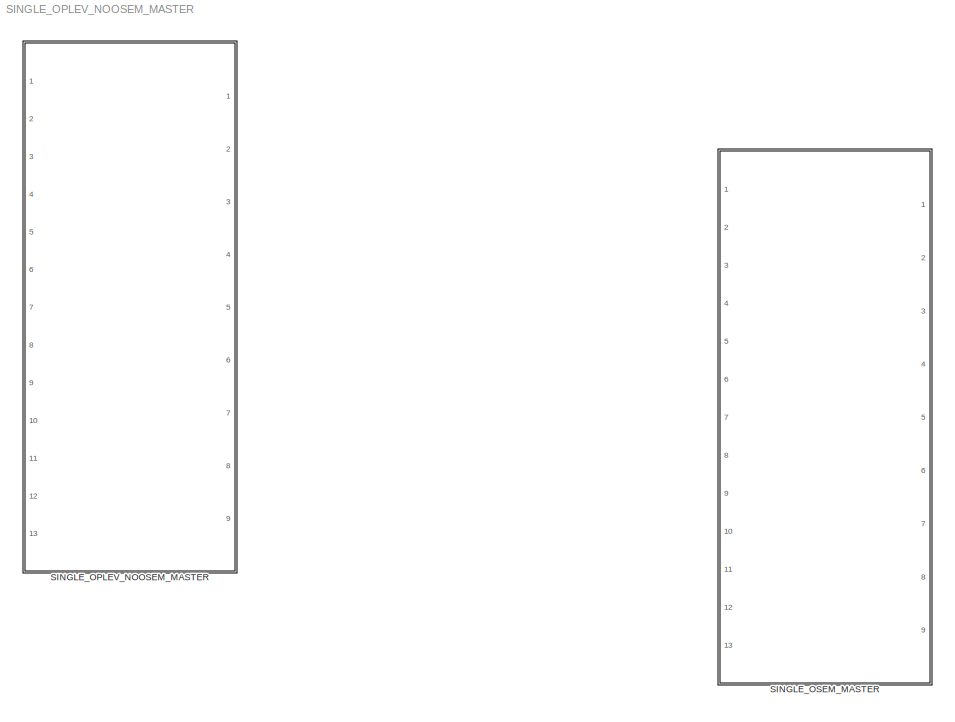
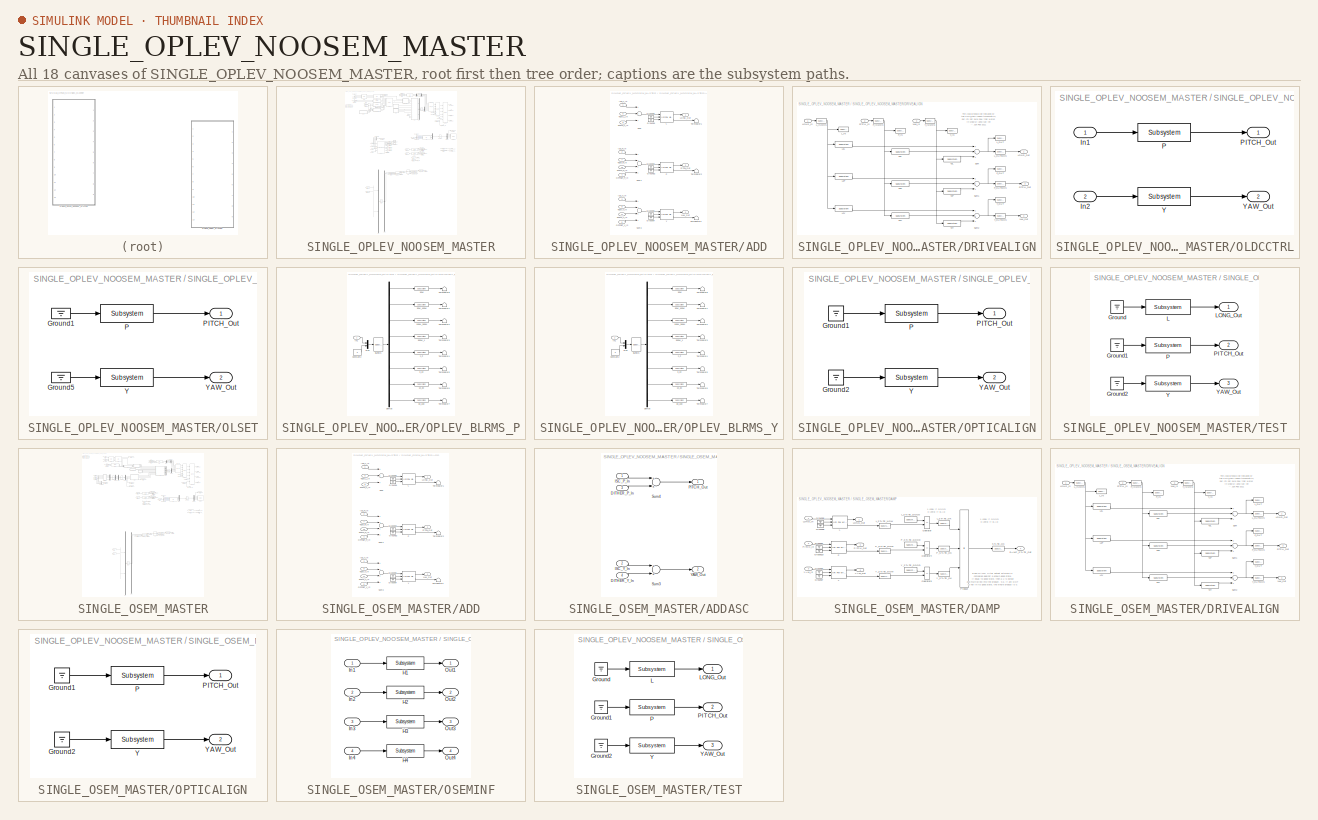
[diagram: thumbnail index - all 18 canvases of the model, root first then tree order]
MODEL SINGLE_OPLEV_NOOSEM_MASTER
KIND library
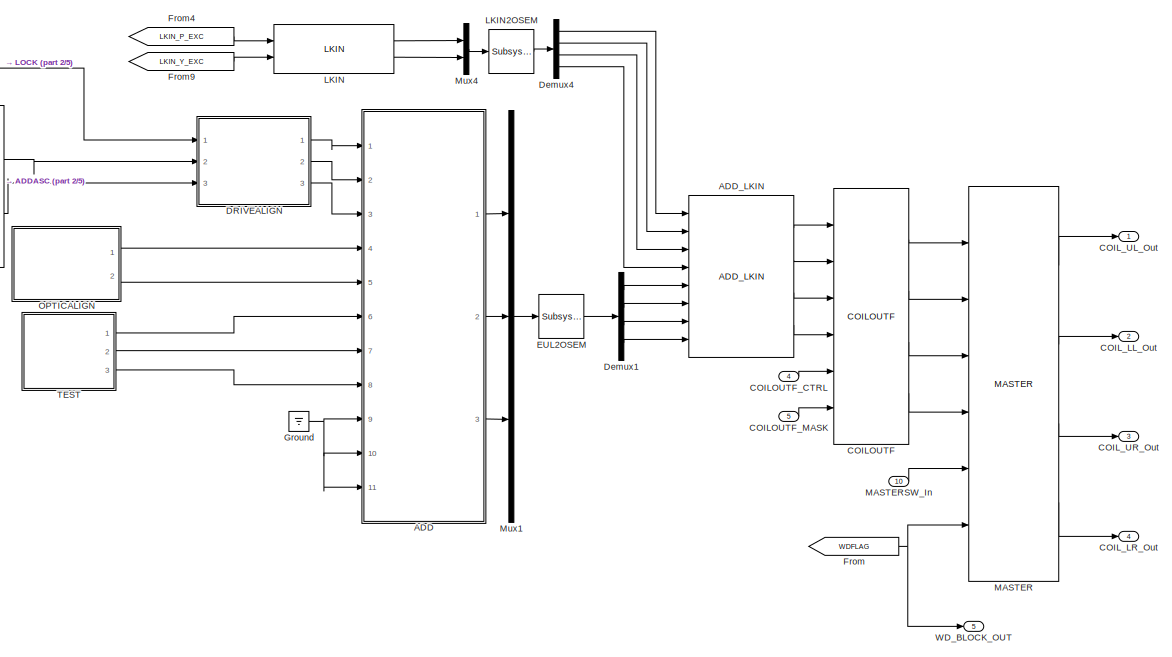
[diagram: SINGLE_OPLEV_NOOSEM_MASTER - part 1/5, top right region]
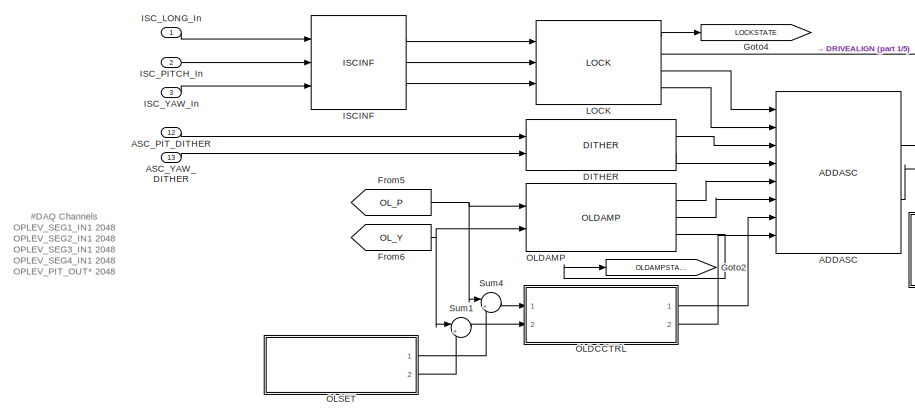
[diagram: SINGLE_OPLEV_NOOSEM_MASTER - part 2/5, top left region]
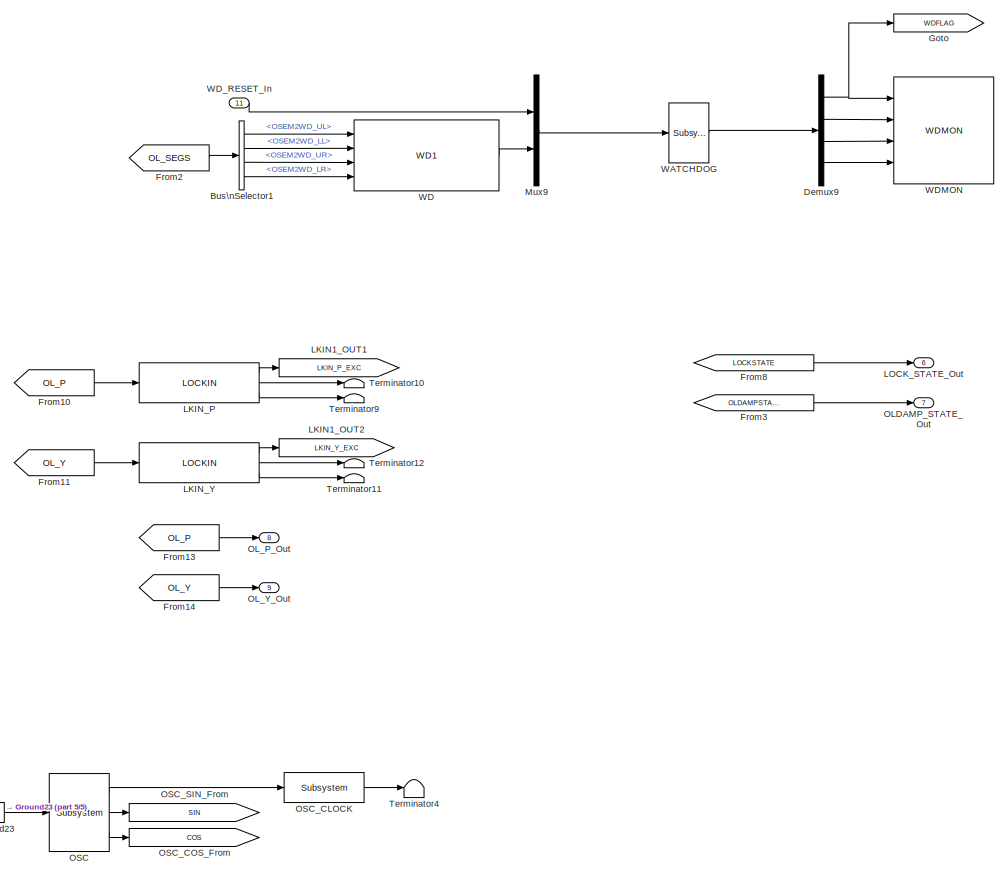
[diagram: SINGLE_OPLEV_NOOSEM_MASTER - part 3/5, middle right region]
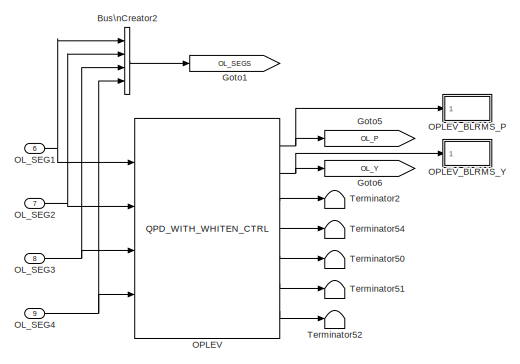
[diagram: SINGLE_OPLEV_NOOSEM_MASTER - part 4/5, central region]
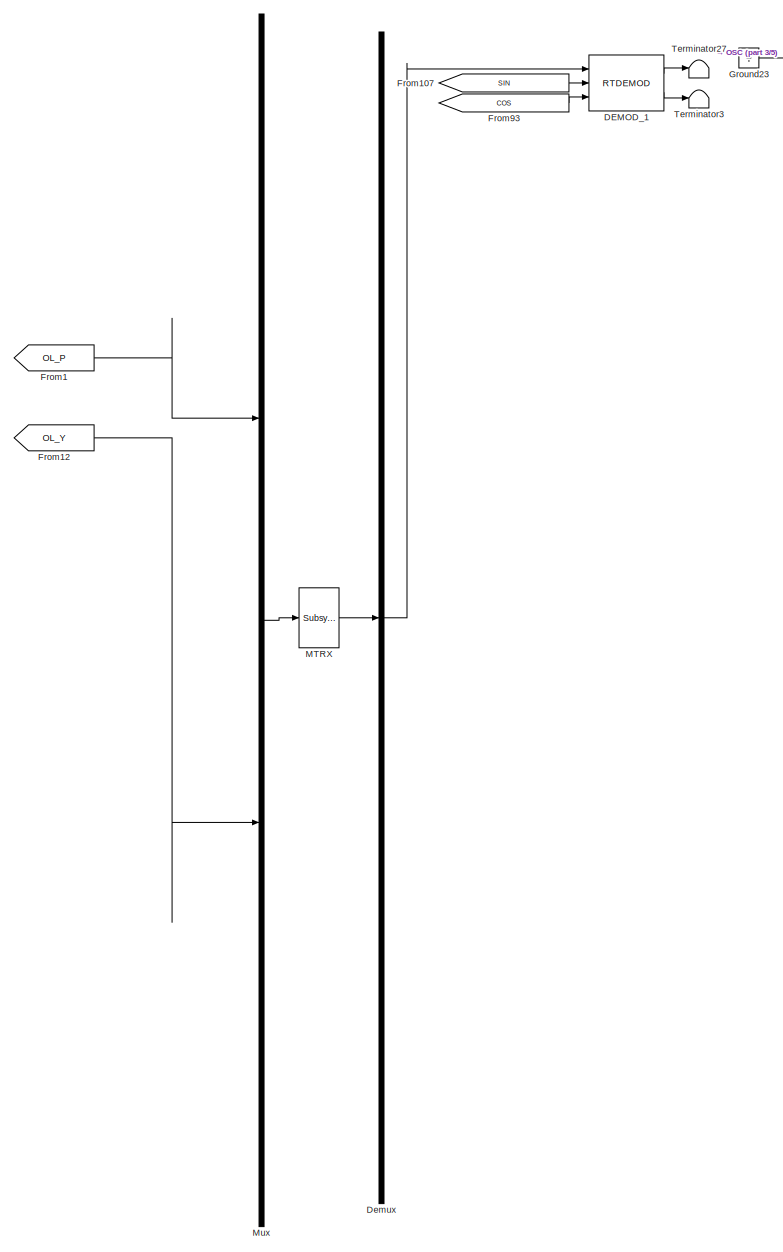
[diagram: SINGLE_OPLEV_NOOSEM_MASTER - part 5/5, bottom center region]
BLOCK [SubSystem] SINGLE_OPLEV_NOOSEM_MASTER
  Ports = [13, 9]
  RequestExecContextInheritance = off
  SID = 1
  Variant = off
BLOCK [SubSystem] SINGLE_OPLEV_NOOSEM_MASTER/ADD
  Ports = [11, 3]
  RequestExecContextInheritance = off
  SID = 19
  Variant = off
BLOCK [Inport] SINGLE_OPLEV_NOOSEM_MASTER/ADD/DAMP_L_In
  IconDisplay = Port number
  Port = 9
  SID = 28
BLOCK [Inport] SINGLE_OPLEV_NOOSEM_MASTER/ADD/DAMP_P_In
  IconDisplay = Port number
  Port = 10
  SID = 29
BLOCK [Inport] SINGLE_OPLEV_NOOSEM_MASTER/ADD/DAMP_Y_In
  IconDisplay = Port number
  Port = 11
  SID = 30
BLOCK [Ground] SINGLE_OPLEV_NOOSEM_MASTER/ADD/Ground1
  SID = 31
BLOCK [Ground] SINGLE_OPLEV_NOOSEM_MASTER/ADD/Ground2
  SID = 32
BLOCK [Ground] SINGLE_OPLEV_NOOSEM_MASTER/ADD/Ground3
  SID = 33
BLOCK [Ground] SINGLE_OPLEV_NOOSEM_MASTER/ADD/Ground4
  SID = 34
BLOCK [Ground] SINGLE_OPLEV_NOOSEM_MASTER/ADD/Ground5
  SID = 35
BLOCK [Ground] SINGLE_OPLEV_NOOSEM_MASTER/ADD/Ground6
  SID = 36
BLOCK [Inport] SINGLE_OPLEV_NOOSEM_MASTER/ADD/ISC_L_In
  IconDisplay = Port number
  SID = 20
BLOCK [Inport] SINGLE_OPLEV_NOOSEM_MASTER/ADD/ISC_P_In
  IconDisplay = Port number
  Port = 2
  SID = 21
BLOCK [Inport] SINGLE_OPLEV_NOOSEM_MASTER/ADD/ISC_Y_In
  IconDisplay = Port number
  Port = 3
  SID = 22
BLOCK [Reference] SINGLE_OPLEV_NOOSEM_MASTER/ADD/L  REF=cdsFiltCtrl/IIR FM with control
  AttributesFormatString = %<Tag>
  Description = cdsFiltCntrl is the standard IIR filter module (exactly the same as cdsFilt) but with added control data output 'Ctrl'. Filter module digital signal output appears on the first output, which is called 'Val'. 'Ctrl' output has a bit pattern encoding the state of filter's on/off switches (FM1 through FM10). The bit values are:\n                                                                        ...<+4621ch>  <repeated x9 — deduplicated; at blocks: L, P, Y>
  Ports = [3, 2]
  SID = 37
  SourceBlock = cdsFiltCtrl/IIR FM with control
  SourceType = SubSystem
  Tag = cdsFiltCtrl
BLOCK [Outport] SINGLE_OPLEV_NOOSEM_MASTER/ADD/LONG_Out
  IconDisplay = Port number
  SID = 46
BLOCK [Inport] SINGLE_OPLEV_NOOSEM_MASTER/ADD/OFFSET_P_In
  IconDisplay = Port number
  Port = 4
  SID = 23
BLOCK [Inport] SINGLE_OPLEV_NOOSEM_MASTER/ADD/OFFSET_Y_In
  IconDisplay = Port number
  Port = 5
  SID = 24
BLOCK [Reference] SINGLE_OPLEV_NOOSEM_MASTER/ADD/P  REF=cdsFiltCtrl/IIR FM with control
  AttributesFormatString = %<Tag>
  Ports = [3, 2]
  SID = 38
  SourceBlock = cdsFiltCtrl/IIR FM with control
  SourceType = SubSystem
  Tag = cdsFiltCtrl
BLOCK [Outport] SINGLE_OPLEV_NOOSEM_MASTER/ADD/PITCH_Out
  IconDisplay = Port number
  Port = 2
  SID = 47
BLOCK [Sum] SINGLE_OPLEV_NOOSEM_MASTER/ADD/Sum
  InputSameDT = off
  Inputs = +++
  OutDataTypeStr = Inherit: Inherit via internal rule
  Ports = [3, 1]
  SID = 39
  SaturateOnIntegerOverflow = off
BLOCK [Sum] SINGLE_OPLEV_NOOSEM_MASTER/ADD/Sum3
  InputSameDT = off
  Inputs = ++++
  OutDataTypeStr = Inherit: Inherit via internal rule
  Ports = [4, 1]
  SID = 40
  SaturateOnIntegerOverflow = off
BLOCK [Sum] SINGLE_OPLEV_NOOSEM_MASTER/ADD/Sum4
  InputSameDT = off
  Inputs = ++++
  OutDataTypeStr = Inherit: Inherit via internal rule
  Ports = [4, 1]
  SID = 41
  SaturateOnIntegerOverflow = off
BLOCK [Inport] SINGLE_OPLEV_NOOSEM_MASTER/ADD/TEST_L_In
  IconDisplay = Port number
  Port = 6
  SID = 25
BLOCK [Inport] SINGLE_OPLEV_NOOSEM_MASTER/ADD/TEST_P_In
  IconDisplay = Port number
  Port = 7
  SID = 26
BLOCK [Inport] SINGLE_OPLEV_NOOSEM_MASTER/ADD/TEST_Y_In
  IconDisplay = Port number
  Port = 8
  SID = 27
BLOCK [Terminator] SINGLE_OPLEV_NOOSEM_MASTER/ADD/Terminator1
  SID = 42
BLOCK [Terminator] SINGLE_OPLEV_NOOSEM_MASTER/ADD/Terminator2
  SID = 43
BLOCK [Terminator] SINGLE_OPLEV_NOOSEM_MASTER/ADD/Terminator3
  SID = 44
BLOCK [Reference] SINGLE_OPLEV_NOOSEM_MASTER/ADD/Y  REF=cdsFiltCtrl/IIR FM with control
  AttributesFormatString = %<Tag>
  Ports = [3, 2]
  SID = 45
  SourceBlock = cdsFiltCtrl/IIR FM with control
  SourceType = SubSystem
  Tag = cdsFiltCtrl
BLOCK [Outport] SINGLE_OPLEV_NOOSEM_MASTER/ADD/YAW_Out
  IconDisplay = Port number
  Port = 3
  SID = 48
BLOCK [Reference] SINGLE_OPLEV_NOOSEM_MASTER/ADDASC  REF=VIS_LIB/ADDASC
  Ports = [8, 2]
  SID = 49
  SourceBlock = VIS_LIB/ADDASC
  SourceType = SubSystem
BLOCK [Reference] SINGLE_OPLEV_NOOSEM_MASTER/ADD_LKIN  REF=VIS_LIB/ADD_LKIN
  Ports = [8, 4]
  SID = 50
  SourceBlock = VIS_LIB/ADD_LKIN
  SourceType = SubSystem
BLOCK [Inport] SINGLE_OPLEV_NOOSEM_MASTER/ASC_PIT_DITHER
  IconDisplay = Port number
  Port = 12
  SID = 17
BLOCK [Inport] SINGLE_OPLEV_NOOSEM_MASTER/ASC_YAW_DITHER
  IconDisplay = Port number
  Port = 13
  SID = 18
BLOCK [BusCreator] SINGLE_OPLEV_NOOSEM_MASTER/Bus\nCreator2
  DisplayOption = bar
  InheritFromInputs = on
  Inputs = 'OSEM2WD_UL','OSEM2WD_LL','OSEM2WD_UR','OSEM2WD_LR'
  Ports = [4, 1]
  SID = 51
BLOCK [BusSelector] SINGLE_OPLEV_NOOSEM_MASTER/Bus\nSelector1
  OutputSignals = OSEM2WD_UL,OSEM2WD_LL,OSEM2WD_UR,OSEM2WD_LR
  Ports = [1, 4]
  SID = 52
BLOCK [Reference] SINGLE_OPLEV_NOOSEM_MASTER/COILOUTF  REF=FOUROSEM_COILOUTF_MASTER/COILOUTF
  Ports = [6, 4]
  SID = 53
  SourceBlock = FOUROSEM_COILOUTF_MASTER/COILOUTF
  SourceType = SubSystem
BLOCK [Inport] SINGLE_OPLEV_NOOSEM_MASTER/COILOUTF_CTRL
  IconDisplay = Port number
  Port = 4
  SID = 9
BLOCK [Inport] SINGLE_OPLEV_NOOSEM_MASTER/COILOUTF_MASK
  IconDisplay = Port number
  Port = 5
  SID = 10
BLOCK [Outport] SINGLE_OPLEV_NOOSEM_MASTER/COIL_LL_Out
  IconDisplay = Port number
  Port = 2
  SID = 235
BLOCK [Outport] SINGLE_OPLEV_NOOSEM_MASTER/COIL_LR_Out
  IconDisplay = Port number
  Port = 4
  SID = 237
BLOCK [Outport] SINGLE_OPLEV_NOOSEM_MASTER/COIL_UL_Out
  IconDisplay = Port number
  SID = 234
BLOCK [Outport] SINGLE_OPLEV_NOOSEM_MASTER/COIL_UR_Out
  IconDisplay = Port number
  Port = 3
  SID = 236
BLOCK [Reference] SINGLE_OPLEV_NOOSEM_MASTER/DEMOD_1  REF=rtdemod/RTDEMOD
  Ports = [3, 2]
  SID = 55
  SourceBlock = rtdemod/RTDEMOD
  SourceType = SubSystem
  Tag = top_names
BLOCK [Reference] SINGLE_OPLEV_NOOSEM_MASTER/DITHER  REF=VIS_LIB/DITHER
  Ports = [2, 2]
  SID = 56
  SourceBlock = VIS_LIB/DITHER
  SourceType = SubSystem
BLOCK [SubSystem] SINGLE_OPLEV_NOOSEM_MASTER/DRIVEALIGN
  Ports = [3, 3]
  RequestExecContextInheritance = off
  SID = 57
  Variant = off
BLOCK [Reference] SINGLE_OPLEV_NOOSEM_MASTER/DRIVEALIGN/L2L  REF=cdsFilt/Subsystem
  AttributesFormatString = %<Tag>
  Description = Purpose:                                                                                                                                                                                                                                  \nStandard CDS IIR filter module.                                                                                                                                     ...<+1302ch>  <repeated x36 — deduplicated; at blocks: L2L, L2P, L2Y, P2L, P2P, P2Y, Y2L, Y2P, Y2Y, P, Y, L, H1, H2, H3, H4>
  Ports = [1, 1]
  SID = 61
  SourceBlock = cdsFilt/Subsystem
  SourceType = SubSystem
  Tag = cdsFilt
BLOCK [Reference] SINGLE_OPLEV_NOOSEM_MASTER/DRIVEALIGN/L2P  REF=cdsFilt/Subsystem
  AttributesFormatString = %<Tag>
  Ports = [1, 1]
  SID = 62
  SourceBlock = cdsFilt/Subsystem
  SourceType = SubSystem
  Tag = cdsFilt
BLOCK [Reference] SINGLE_OPLEV_NOOSEM_MASTER/DRIVEALIGN/L2Y  REF=cdsFilt/Subsystem
  AttributesFormatString = %<Tag>
  Ports = [1, 1]
  SID = 63
  SourceBlock = cdsFilt/Subsystem
  SourceType = SubSystem
  Tag = cdsFilt
BLOCK [Inport] SINGLE_OPLEV_NOOSEM_MASTER/DRIVEALIGN/LONG_In
  IconDisplay = Port number
  SID = 58
BLOCK [Outport] SINGLE_OPLEV_NOOSEM_MASTER/DRIVEALIGN/LONG_Out
  IconDisplay = Port number
  SID = 85
BLOCK [Reference] SINGLE_OPLEV_NOOSEM_MASTER/DRIVEALIGN/L_IN  REF=cdsTP/Subsystem
  AttributesFormatString = %<Tag>
  Ports = [1]
  SID = 64
  SourceBlock = cdsTP/Subsystem
  SourceType = SubSystem
  Tag = Test Point
BLOCK [Reference] SINGLE_OPLEV_NOOSEM_MASTER/DRIVEALIGN/L_INMON  REF=cdsEpicsOut/Subsystem
  AttributesFormatString = %<Tag>
  Description = Purpose:                                          \nOutput a FE signal to an EPICS channel.           \n                                                  \nOperation:                                        \nTakes input value and passes it to EPICS record.  \n                                                  \nUsage:                                            \nName the part with the desired EPICS...<+14ch>  <repeated x37 — deduplicated; at blocks: L_INMON, L_OUTMON, P_INMON, P_OUTMON, Y_INMON, Y_OUTMON, 100M_300M, 10_30, 1_3, 300M_1, 30M, 30M_100M, 30_100, 3_10, OSC_CLOCK, L_STATE_NOW, +6 more>
  Ports = [1, 1]
  SID = 65
  SourceBlock = cdsEpicsOut/Subsystem
  SourceType = SubSystem
  Tag = cdsEpicsOutput
BLOCK [Reference] SINGLE_OPLEV_NOOSEM_MASTER/DRIVEALIGN/L_OUT  REF=cdsTP/Subsystem
  AttributesFormatString = %<Tag>
  Ports = [1]
  SID = 66
  SourceBlock = cdsTP/Subsystem
  SourceType = SubSystem
  Tag = Test Point
BLOCK [Reference] SINGLE_OPLEV_NOOSEM_MASTER/DRIVEALIGN/L_OUTMON  REF=cdsEpicsOut/Subsystem
  AttributesFormatString = %<Tag>
  Ports = [1, 1]
  SID = 67
  SourceBlock = cdsEpicsOut/Subsystem
  SourceType = SubSystem
  Tag = cdsEpicsOutput
BLOCK [Reference] SINGLE_OPLEV_NOOSEM_MASTER/DRIVEALIGN/P2L  REF=cdsFilt/Subsystem
  AttributesFormatString = %<Tag>
  Ports = [1, 1]
  SID = 68
  SourceBlock = cdsFilt/Subsystem
  SourceType = SubSystem
  Tag = cdsFilt
BLOCK [Reference] SINGLE_OPLEV_NOOSEM_MASTER/DRIVEALIGN/P2P  REF=cdsFilt/Subsystem
  AttributesFormatString = %<Tag>
  Ports = [1, 1]
  SID = 69
  SourceBlock = cdsFilt/Subsystem
  SourceType = SubSystem
  Tag = cdsFilt
BLOCK [Reference] SINGLE_OPLEV_NOOSEM_MASTER/DRIVEALIGN/P2Y  REF=cdsFilt/Subsystem
  AttributesFormatString = %<Tag>
  Ports = [1, 1]
  SID = 70
  SourceBlock = cdsFilt/Subsystem
  SourceType = SubSystem
  Tag = cdsFilt
BLOCK [Inport] SINGLE_OPLEV_NOOSEM_MASTER/DRIVEALIGN/PITCH_In
  IconDisplay = Port number
  Port = 2
  SID = 59
BLOCK [Outport] SINGLE_OPLEV_NOOSEM_MASTER/DRIVEALIGN/PITCH_Out
  IconDisplay = Port number
  Port = 2
  SID = 86
BLOCK [Reference] SINGLE_OPLEV_NOOSEM_MASTER/DRIVEALIGN/P_IN  REF=cdsTP/Subsystem
  AttributesFormatString = %<Tag>
  Ports = [1]
  SID = 71
  SourceBlock = cdsTP/Subsystem
  SourceType = SubSystem
  Tag = Test Point
BLOCK [Reference] SINGLE_OPLEV_NOOSEM_MASTER/DRIVEALIGN/P_INMON  REF=cdsEpicsOut/Subsystem
  AttributesFormatString = %<Tag>
  Ports = [1, 1]
  SID = 72
  SourceBlock = cdsEpicsOut/Subsystem
  SourceType = SubSystem
  Tag = cdsEpicsOutput
BLOCK [Reference] SINGLE_OPLEV_NOOSEM_MASTER/DRIVEALIGN/P_OUT  REF=cdsTP/Subsystem
  AttributesFormatString = %<Tag>
  Ports = [1]
  SID = 73
  SourceBlock = cdsTP/Subsystem
  SourceType = SubSystem
  Tag = Test Point
BLOCK [Reference] SINGLE_OPLEV_NOOSEM_MASTER/DRIVEALIGN/P_OUTMON  REF=cdsEpicsOut/Subsystem
  AttributesFormatString = %<Tag>
  Ports = [1, 1]
  SID = 74
  SourceBlock = cdsEpicsOut/Subsystem
  SourceType = SubSystem
  Tag = cdsEpicsOutput
BLOCK [Sum] SINGLE_OPLEV_NOOSEM_MASTER/DRIVEALIGN/Sum
  InputSameDT = off
  Inputs = +++
  OutDataTypeStr = Inherit: Inherit via internal rule
  Ports = [3, 1]
  SID = 75
  SaturateOnIntegerOverflow = off
BLOCK [Sum] SINGLE_OPLEV_NOOSEM_MASTER/DRIVEALIGN/Sum1
  InputSameDT = off
  Inputs = +++
  OutDataTypeStr = Inherit: Inherit via internal rule
  Ports = [3, 1]
  SID = 76
  SaturateOnIntegerOverflow = off
BLOCK [Sum] SINGLE_OPLEV_NOOSEM_MASTER/DRIVEALIGN/Sum2
  InputSameDT = off
  Inputs = +++
  OutDataTypeStr = Inherit: Inherit via internal rule
  Ports = [3, 1]
  SID = 77
  SaturateOnIntegerOverflow = off
BLOCK [Reference] SINGLE_OPLEV_NOOSEM_MASTER/DRIVEALIGN/Y2L  REF=cdsFilt/Subsystem
  AttributesFormatString = %<Tag>
  Ports = [1, 1]
  SID = 78
  SourceBlock = cdsFilt/Subsystem
  SourceType = SubSystem
  Tag = cdsFilt
BLOCK [Reference] SINGLE_OPLEV_NOOSEM_MASTER/DRIVEALIGN/Y2P  REF=cdsFilt/Subsystem
  AttributesFormatString = %<Tag>
  Ports = [1, 1]
  SID = 79
  SourceBlock = cdsFilt/Subsystem
  SourceType = SubSystem
  Tag = cdsFilt
BLOCK [Reference] SINGLE_OPLEV_NOOSEM_MASTER/DRIVEALIGN/Y2Y  REF=cdsFilt/Subsystem
  AttributesFormatString = %<Tag>
  Ports = [1, 1]
  SID = 80
  SourceBlock = cdsFilt/Subsystem
  SourceType = SubSystem
  Tag = cdsFilt
BLOCK [Inport] SINGLE_OPLEV_NOOSEM_MASTER/DRIVEALIGN/YAW_In
  IconDisplay = Port number
  Port = 3
  SID = 60
BLOCK [Outport] SINGLE_OPLEV_NOOSEM_MASTER/DRIVEALIGN/YAW_Out
  IconDisplay = Port number
  Port = 3
  SID = 87
BLOCK [Reference] SINGLE_OPLEV_NOOSEM_MASTER/DRIVEALIGN/Y_IN  REF=cdsTP/Subsystem
  AttributesFormatString = %<Tag>
  Ports = [1]
  SID = 81
  SourceBlock = cdsTP/Subsystem
  SourceType = SubSystem
  Tag = Test Point
BLOCK [Reference] SINGLE_OPLEV_NOOSEM_MASTER/DRIVEALIGN/Y_INMON  REF=cdsEpicsOut/Subsystem
  AttributesFormatString = %<Tag>
  Ports = [1, 1]
  SID = 82
  SourceBlock = cdsEpicsOut/Subsystem
  SourceType = SubSystem
  Tag = cdsEpicsOutput
BLOCK [Reference] SINGLE_OPLEV_NOOSEM_MASTER/DRIVEALIGN/Y_OUT  REF=cdsTP/Subsystem
  AttributesFormatString = %<Tag>
  Ports = [1]
  SID = 83
  SourceBlock = cdsTP/Subsystem
  SourceType = SubSystem
  Tag = Test Point
BLOCK [Reference] SINGLE_OPLEV_NOOSEM_MASTER/DRIVEALIGN/Y_OUTMON  REF=cdsEpicsOut/Subsystem
  AttributesFormatString = %<Tag>
  Ports = [1, 1]
  SID = 84
  SourceBlock = cdsEpicsOut/Subsystem
  SourceType = SubSystem
  Tag = cdsEpicsOutput
BLOCK [Demux] SINGLE_OPLEV_NOOSEM_MASTER/Demux
  DisplayOption = bar
  Outputs = 1
  Ports = [1, 1]
  SID = 89
BLOCK [Demux] SINGLE_OPLEV_NOOSEM_MASTER/Demux1
  DisplayOption = bar
  Ports = [1, 4]
  SID = 90
BLOCK [Demux] SINGLE_OPLEV_NOOSEM_MASTER/Demux4
  DisplayOption = bar
  Ports = [1, 4]
  SID = 93
BLOCK [Demux] SINGLE_OPLEV_NOOSEM_MASTER/Demux9
  DisplayOption = bar
  Ports = [1, 4]
  SID = 94
BLOCK [Reference] SINGLE_OPLEV_NOOSEM_MASTER/EUL2OSEM  REF=cdsMuxMatrix/Subsystem
  AttributesFormatString = %<Tag>
  Description = Any size matrix. Inputs and outputs must be connected using Mux and Demux parts.
  Ports = [1, 1]
  SID = 95
  SourceBlock = cdsMuxMatrix/Subsystem
  SourceType = SubSystem
  Tag = cdsMuxMatrix
BLOCK [From] SINGLE_OPLEV_NOOSEM_MASTER/From
  CloseFcn = tagdialog Close
  GotoTag = WDFLAG
  SID = 96
BLOCK [From] SINGLE_OPLEV_NOOSEM_MASTER/From1
  CloseFcn = tagdialog Close
  GotoTag = OL_P
  SID = 97
BLOCK [From] SINGLE_OPLEV_NOOSEM_MASTER/From10
  CloseFcn = tagdialog Close
  GotoTag = OL_P
  SID = 98
BLOCK [From] SINGLE_OPLEV_NOOSEM_MASTER/From107
  GotoTag = SIN
  SID = 99
BLOCK [From] SINGLE_OPLEV_NOOSEM_MASTER/From11
  CloseFcn = tagdialog Close
  GotoTag = OL_Y
  SID = 100
BLOCK [From] SINGLE_OPLEV_NOOSEM_MASTER/From12
  CloseFcn = tagdialog Close
  GotoTag = OL_Y
  SID = 101
BLOCK [From] SINGLE_OPLEV_NOOSEM_MASTER/From13
  CloseFcn = tagdialog Close
  GotoTag = OL_P
  SID = 102
BLOCK [From] SINGLE_OPLEV_NOOSEM_MASTER/From14
  CloseFcn = tagdialog Close
  GotoTag = OL_Y
  SID = 103
BLOCK [From] SINGLE_OPLEV_NOOSEM_MASTER/From2
  CloseFcn = tagdialog Close
  GotoTag = OL_SEGS
  SID = 247
BLOCK [From] SINGLE_OPLEV_NOOSEM_MASTER/From3
  CloseFcn = tagdialog Close
  GotoTag = OLDAMPSTATE
  SID = 105
BLOCK [From] SINGLE_OPLEV_NOOSEM_MASTER/From4
  CloseFcn = tagdialog Close
  GotoTag = LKIN_P_EXC
  SID = 106
BLOCK [From] SINGLE_OPLEV_NOOSEM_MASTER/From5
  CloseFcn = tagdialog Close
  GotoTag = OL_P
  SID = 107
BLOCK [From] SINGLE_OPLEV_NOOSEM_MASTER/From6
  CloseFcn = tagdialog Close
  GotoTag = OL_Y
  SID = 108
BLOCK [From] SINGLE_OPLEV_NOOSEM_MASTER/From8
  CloseFcn = tagdialog Close
  GotoTag = LOCKSTATE
  SID = 110
BLOCK [From] SINGLE_OPLEV_NOOSEM_MASTER/From9
  CloseFcn = tagdialog Close
  GotoTag = LKIN_Y_EXC
  SID = 111
BLOCK [From] SINGLE_OPLEV_NOOSEM_MASTER/From93
  GotoTag = COS
  SID = 112
BLOCK [Goto] SINGLE_OPLEV_NOOSEM_MASTER/Goto
  GotoTag = WDFLAG
  SID = 113
BLOCK [Goto] SINGLE_OPLEV_NOOSEM_MASTER/Goto1
  GotoTag = OL_SEGS
  SID = 246
BLOCK [Goto] SINGLE_OPLEV_NOOSEM_MASTER/Goto2
  GotoTag = OLDAMPSTATE
  SID = 115
BLOCK [Goto] SINGLE_OPLEV_NOOSEM_MASTER/Goto4
  GotoTag = LOCKSTATE
  SID = 117
BLOCK [Goto] SINGLE_OPLEV_NOOSEM_MASTER/Goto5
  GotoTag = OL_P
  SID = 118
BLOCK [Goto] SINGLE_OPLEV_NOOSEM_MASTER/Goto6
  GotoTag = OL_Y
  SID = 119
BLOCK [Ground] SINGLE_OPLEV_NOOSEM_MASTER/Ground
  SID = 245
BLOCK [Ground] SINGLE_OPLEV_NOOSEM_MASTER/Ground23
  SID = 120
BLOCK [Reference] SINGLE_OPLEV_NOOSEM_MASTER/ISCINF  REF=VIS_LIB/ISCINF
  Ports = [3, 3]
  SID = 121
  SourceBlock = VIS_LIB/ISCINF
  SourceType = SubSystem
BLOCK [Inport] SINGLE_OPLEV_NOOSEM_MASTER/ISC_LONG_In
  IconDisplay = Port number
  SID = 6
BLOCK [Inport] SINGLE_OPLEV_NOOSEM_MASTER/ISC_PITCH_In
  IconDisplay = Port number
  Port = 2
  SID = 7
BLOCK [Inport] SINGLE_OPLEV_NOOSEM_MASTER/ISC_YAW_In
  IconDisplay = Port number
  Port = 3
  SID = 8
BLOCK [Reference] SINGLE_OPLEV_NOOSEM_MASTER/LKIN  REF=VIS_LIB/LKIN
  Ports = [2, 2]
  SID = 122
  SourceBlock = VIS_LIB/LKIN
  SourceType = SubSystem
BLOCK [Goto] SINGLE_OPLEV_NOOSEM_MASTER/LKIN1_OUT1
  GotoTag = LKIN_P_EXC
  SID = 123
BLOCK [Goto] SINGLE_OPLEV_NOOSEM_MASTER/LKIN1_OUT2
  GotoTag = LKIN_Y_EXC
  SID = 124
BLOCK [Reference] SINGLE_OPLEV_NOOSEM_MASTER/LKIN2OSEM  REF=cdsMuxMatrix/Subsystem
  AttributesFormatString = %<Tag>
  Description = Any size matrix. Inputs and outputs must be connected using Mux and Demux parts.
  Ports = [1, 1]
  SID = 125
  SourceBlock = cdsMuxMatrix/Subsystem
  SourceType = SubSystem
  Tag = cdsMuxMatrix
BLOCK [Reference] SINGLE_OPLEV_NOOSEM_MASTER/LKIN_P  REF=lockin/LOCKIN
  AttributesFormatString = %<Tag>
  Description = ADL=LOCKIN.adl
  Ports = [1, 3]
  SID = 126
  SourceBlock = lockin/LOCKIN
  SourceType = SubSystem
BLOCK [Reference] SINGLE_OPLEV_NOOSEM_MASTER/LKIN_Y  REF=lockin/LOCKIN
  AttributesFormatString = %<Tag>
  Description = ADL=LOCKIN.adl
  Ports = [1, 3]
  SID = 127
  SourceBlock = lockin/LOCKIN
  SourceType = SubSystem
BLOCK [Reference] SINGLE_OPLEV_NOOSEM_MASTER/LOCK  REF=VIS_LIB/LOCK
  Ports = [3, 4]
  SID = 128
  SourceBlock = VIS_LIB/LOCK
  SourceType = SubSystem
BLOCK [Outport] SINGLE_OPLEV_NOOSEM_MASTER/LOCK_STATE_Out
  IconDisplay = Port number
  Port = 6
  SID = 240
BLOCK [Reference] SINGLE_OPLEV_NOOSEM_MASTER/MASTER  REF=CRYP_TM_MASTER/CRYP_TM_MASTER/MASTER
  Ports = [6, 4]
  SID = 248
  SourceBlock = CRYP_TM_MASTER/CRYP_TM_MASTER/MASTER
  SourceType = SubSystem
BLOCK [Inport] SINGLE_OPLEV_NOOSEM_MASTER/MASTERSW_In
  IconDisplay = Port number
  Port = 10
  SID = 15
BLOCK [Reference] SINGLE_OPLEV_NOOSEM_MASTER/MTRX  REF=cdsMuxMatrix/Subsystem
  AttributesFormatString = %<Tag>
  Description = Any size matrix. Inputs and outputs must be connected using Mux and Demux parts.
  Ports = [1, 1]
  SID = 130
  SourceBlock = cdsMuxMatrix/Subsystem
  SourceType = SubSystem
  Tag = cdsMuxMatrix
BLOCK [Mux] SINGLE_OPLEV_NOOSEM_MASTER/Mux
  DisplayOption = bar
  Inputs = 2
  Ports = [2, 1]
  SID = 131
BLOCK [Mux] SINGLE_OPLEV_NOOSEM_MASTER/Mux1
  DisplayOption = bar
  Inputs = 3
  Ports = [3, 1]
  SID = 132
BLOCK [Mux] SINGLE_OPLEV_NOOSEM_MASTER/Mux4
  DisplayOption = bar
  Inputs = 2
  Ports = [2, 1]
  SID = 135
BLOCK [Mux] SINGLE_OPLEV_NOOSEM_MASTER/Mux9
  DisplayOption = bar
  Inputs = 2
  Ports = [2, 1]
  SID = 136
BLOCK [Reference] SINGLE_OPLEV_NOOSEM_MASTER/OLDAMP  REF=VIS_LIB/OLDAMP
  Ports = [2, 3]
  SID = 137
  SourceBlock = VIS_LIB/OLDAMP
  SourceType = SubSystem
BLOCK [Outport] SINGLE_OPLEV_NOOSEM_MASTER/OLDAMP_STATE_Out
  IconDisplay = Port number
  Port = 7
  SID = 241
BLOCK [SubSystem] SINGLE_OPLEV_NOOSEM_MASTER/OLDCCTRL
  Ports = [2, 2]
  RequestExecContextInheritance = off
  SID = 253
  Variant = off
BLOCK [Inport] SINGLE_OPLEV_NOOSEM_MASTER/OLDCCTRL/In1
  IconDisplay = Port number
  SID = 254
BLOCK [Inport] SINGLE_OPLEV_NOOSEM_MASTER/OLDCCTRL/In2
  IconDisplay = Port number
  Port = 2
  SID = 255
BLOCK [Reference] SINGLE_OPLEV_NOOSEM_MASTER/OLDCCTRL/P  REF=cdsFilt/Subsystem
  AttributesFormatString = %<Tag>
  Ports = [1, 1]
  SID = 249
  SourceBlock = cdsFilt/Subsystem
  SourceType = SubSystem
  Tag = cdsFilt
BLOCK [Outport] SINGLE_OPLEV_NOOSEM_MASTER/OLDCCTRL/PITCH_Out
  IconDisplay = Port number
  SID = 256
BLOCK [Reference] SINGLE_OPLEV_NOOSEM_MASTER/OLDCCTRL/Y  REF=cdsFilt/Subsystem
  AttributesFormatString = %<Tag>
  Ports = [1, 1]
  SID = 250
  SourceBlock = cdsFilt/Subsystem
  SourceType = SubSystem
  Tag = cdsFilt
BLOCK [Outport] SINGLE_OPLEV_NOOSEM_MASTER/OLDCCTRL/YAW_Out
  IconDisplay = Port number
  Port = 2
  SID = 257
BLOCK [SubSystem] SINGLE_OPLEV_NOOSEM_MASTER/OLSET
  AncestorBlock = SINGLE_OPLEV_NOOSEM_MASTER/SINGLE_OPLEV_NOOSEM_MASTER/OLDCCTRL
  Ports = [0, 2]
  RequestExecContextInheritance = off
  SID = 258
  Variant = off
BLOCK [Ground] SINGLE_OPLEV_NOOSEM_MASTER/OLSET/Ground1
  SID = 258:258
BLOCK [Ground] SINGLE_OPLEV_NOOSEM_MASTER/OLSET/Ground5
  SID = 258:259
BLOCK [Reference] SINGLE_OPLEV_NOOSEM_MASTER/OLSET/P  REF=cdsFilt/Subsystem
  AttributesFormatString = %<Tag>
  Ports = [1, 1]
  SID = 258:249
  SourceBlock = cdsFilt/Subsystem
  SourceType = SubSystem
  Tag = cdsFilt
BLOCK [Outport] SINGLE_OPLEV_NOOSEM_MASTER/OLSET/PITCH_Out
  IconDisplay = Port number
  SID = 258:256
BLOCK [Reference] SINGLE_OPLEV_NOOSEM_MASTER/OLSET/Y  REF=cdsFilt/Subsystem
  AttributesFormatString = %<Tag>
  Ports = [1, 1]
  SID = 258:250
  SourceBlock = cdsFilt/Subsystem
  SourceType = SubSystem
  Tag = cdsFilt
BLOCK [Outport] SINGLE_OPLEV_NOOSEM_MASTER/OLSET/YAW_Out
  IconDisplay = Port number
  Port = 2
  SID = 258:257
BLOCK [Outport] SINGLE_OPLEV_NOOSEM_MASTER/OL_P_Out
  IconDisplay = Port number
  Port = 8
  SID = 242
BLOCK [Inport] SINGLE_OPLEV_NOOSEM_MASTER/OL_SEG1
  IconDisplay = Port number
  Port = 6
  SID = 11
BLOCK [Inport] SINGLE_OPLEV_NOOSEM_MASTER/OL_SEG2
  IconDisplay = Port number
  Port = 7
  SID = 12
BLOCK [Inport] SINGLE_OPLEV_NOOSEM_MASTER/OL_SEG3
  IconDisplay = Port number
  Port = 8
  SID = 13
BLOCK [Inport] SINGLE_OPLEV_NOOSEM_MASTER/OL_SEG4
  IconDisplay = Port number
  Port = 9
  SID = 14
BLOCK [Outport] SINGLE_OPLEV_NOOSEM_MASTER/OL_Y_Out
  IconDisplay = Port number
  Port = 9
  SID = 243
BLOCK [Reference] SINGLE_OPLEV_NOOSEM_MASTER/OPLEV  REF=QPD/QPD_WITH_WHITEN_CTRL
  Ports = [4, 7]
  SID = 138
  SourceBlock = QPD/QPD_WITH_WHITEN_CTRL
  SourceType = SubSystem
BLOCK [SubSystem] SINGLE_OPLEV_NOOSEM_MASTER/OPLEV_BLRMS_P
  Ports = [1]
  RequestExecContextInheritance = off
  SID = 139
  Variant = off
BLOCK [Reference] SINGLE_OPLEV_NOOSEM_MASTER/OPLEV_BLRMS_P/100M_300M  REF=cdsEpicsOut/Subsystem
  AttributesFormatString = %<Tag>
  Ports = [1, 1]
  SID = 141
  SourceBlock = cdsEpicsOut/Subsystem
  SourceType = SubSystem
  Tag = cdsEpicsOutput
BLOCK [Reference] SINGLE_OPLEV_NOOSEM_MASTER/OPLEV_BLRMS_P/10_30  REF=cdsEpicsOut/Subsystem
  AttributesFormatString = %<Tag>
  Ports = [1, 1]
  SID = 142
  SourceBlock = cdsEpicsOut/Subsystem
  SourceType = SubSystem
  Tag = cdsEpicsOutput
BLOCK [Reference] SINGLE_OPLEV_NOOSEM_MASTER/OPLEV_BLRMS_P/1_3  REF=cdsEpicsOut/Subsystem
  AttributesFormatString = %<Tag>
  Ports = [1, 1]
  SID = 143
  SourceBlock = cdsEpicsOut/Subsystem
  SourceType = SubSystem
  Tag = cdsEpicsOutput
BLOCK [Reference] SINGLE_OPLEV_NOOSEM_MASTER/OPLEV_BLRMS_P/300M_1  REF=cdsEpicsOut/Subsystem
  AttributesFormatString = %<Tag>
  Ports = [1, 1]
  SID = 144
  SourceBlock = cdsEpicsOut/Subsystem
  SourceType = SubSystem
  Tag = cdsEpicsOutput
BLOCK [Reference] SINGLE_OPLEV_NOOSEM_MASTER/OPLEV_BLRMS_P/30M  REF=cdsEpicsOut/Subsystem
  AttributesFormatString = %<Tag>
  Ports = [1, 1]
  SID = 145
  SourceBlock = cdsEpicsOut/Subsystem
  SourceType = SubSystem
  Tag = cdsEpicsOutput
BLOCK [Reference] SINGLE_OPLEV_NOOSEM_MASTER/OPLEV_BLRMS_P/30M_100M  REF=cdsEpicsOut/Subsystem
  AttributesFormatString = %<Tag>
  Ports = [1, 1]
  SID = 146
  SourceBlock = cdsEpicsOut/Subsystem
  SourceType = SubSystem
  Tag = cdsEpicsOutput
BLOCK [Reference] SINGLE_OPLEV_NOOSEM_MASTER/OPLEV_BLRMS_P/30_100  REF=cdsEpicsOut/Subsystem
  AttributesFormatString = %<Tag>
  Ports = [1, 1]
  SID = 147
  SourceBlock = cdsEpicsOut/Subsystem
  SourceType = SubSystem
  Tag = cdsEpicsOutput
BLOCK [Reference] SINGLE_OPLEV_NOOSEM_MASTER/OPLEV_BLRMS_P/3_10  REF=cdsEpicsOut/Subsystem
  AttributesFormatString = %<Tag>
  Ports = [1, 1]
  SID = 148
  SourceBlock = cdsEpicsOut/Subsystem
  SourceType = SubSystem
  Tag = cdsEpicsOutput
BLOCK [Reference] SINGLE_OPLEV_NOOSEM_MASTER/OPLEV_BLRMS_P/BLRMS  REF=cdsFunctionCall/Subsystem
  AttributesFormatString = %<Tag>\\n%<Description>
  Description = inline BLRMS <path>
  Ports = [1, 1]
  SID = 149
  SourceBlock = cdsFunctionCall/Subsystem
  SourceType = SubSystem
  Tag = cdsFunctionCall
BLOCK [Constant] SINGLE_OPLEV_NOOSEM_MASTER/OPLEV_BLRMS_P/Constant2
  SID = 150
  Value = 2
BLOCK [Demux] SINGLE_OPLEV_NOOSEM_MASTER/OPLEV_BLRMS_P/Demux
  DisplayOption = bar
  Outputs = 8
  Ports = [1, 8]
  SID = 151
BLOCK [Inport] SINGLE_OPLEV_NOOSEM_MASTER/OPLEV_BLRMS_P/In1
  IconDisplay = Port number
  SID = 140
BLOCK [Mux] SINGLE_OPLEV_NOOSEM_MASTER/OPLEV_BLRMS_P/Mux
  DisplayOption = bar
  Inputs = 2
  Ports = [2, 1]
  SID = 152
BLOCK [Terminator] SINGLE_OPLEV_NOOSEM_MASTER/OPLEV_BLRMS_P/Terminator1
  SID = 153
BLOCK [Terminator] SINGLE_OPLEV_NOOSEM_MASTER/OPLEV_BLRMS_P/Terminator2
  SID = 154
BLOCK [Terminator] SINGLE_OPLEV_NOOSEM_MASTER/OPLEV_BLRMS_P/Terminator3
  SID = 155
BLOCK [Terminator] SINGLE_OPLEV_NOOSEM_MASTER/OPLEV_BLRMS_P/Terminator4
  SID = 156
BLOCK [Terminator] SINGLE_OPLEV_NOOSEM_MASTER/OPLEV_BLRMS_P/Terminator5
  SID = 157
BLOCK [Terminator] SINGLE_OPLEV_NOOSEM_MASTER/OPLEV_BLRMS_P/Terminator6
  SID = 158
BLOCK [Terminator] SINGLE_OPLEV_NOOSEM_MASTER/OPLEV_BLRMS_P/Terminator7
  SID = 159
BLOCK [Terminator] SINGLE_OPLEV_NOOSEM_MASTER/OPLEV_BLRMS_P/Terminator8
  SID = 160
BLOCK [SubSystem] SINGLE_OPLEV_NOOSEM_MASTER/OPLEV_BLRMS_Y
  Ports = [1]
  RequestExecContextInheritance = off
  SID = 161
  Variant = off
BLOCK [Reference] SINGLE_OPLEV_NOOSEM_MASTER/OPLEV_BLRMS_Y/100M_300M  REF=cdsEpicsOut/Subsystem
  AttributesFormatString = %<Tag>
  Ports = [1, 1]
  SID = 163
  SourceBlock = cdsEpicsOut/Subsystem
  SourceType = SubSystem
  Tag = cdsEpicsOutput
BLOCK [Reference] SINGLE_OPLEV_NOOSEM_MASTER/OPLEV_BLRMS_Y/10_30  REF=cdsEpicsOut/Subsystem
  AttributesFormatString = %<Tag>
  Ports = [1, 1]
  SID = 164
  SourceBlock = cdsEpicsOut/Subsystem
  SourceType = SubSystem
  Tag = cdsEpicsOutput
BLOCK [Reference] SINGLE_OPLEV_NOOSEM_MASTER/OPLEV_BLRMS_Y/1_3  REF=cdsEpicsOut/Subsystem
  AttributesFormatString = %<Tag>
  Ports = [1, 1]
  SID = 165
  SourceBlock = cdsEpicsOut/Subsystem
  SourceType = SubSystem
  Tag = cdsEpicsOutput
BLOCK [Reference] SINGLE_OPLEV_NOOSEM_MASTER/OPLEV_BLRMS_Y/300M_1  REF=cdsEpicsOut/Subsystem
  AttributesFormatString = %<Tag>
  Ports = [1, 1]
  SID = 166
  SourceBlock = cdsEpicsOut/Subsystem
  SourceType = SubSystem
  Tag = cdsEpicsOutput
BLOCK [Reference] SINGLE_OPLEV_NOOSEM_MASTER/OPLEV_BLRMS_Y/30M  REF=cdsEpicsOut/Subsystem
  AttributesFormatString = %<Tag>
  Ports = [1, 1]
  SID = 167
  SourceBlock = cdsEpicsOut/Subsystem
  SourceType = SubSystem
  Tag = cdsEpicsOutput
BLOCK [Reference] SINGLE_OPLEV_NOOSEM_MASTER/OPLEV_BLRMS_Y/30M_100M  REF=cdsEpicsOut/Subsystem
  AttributesFormatString = %<Tag>
  Ports = [1, 1]
  SID = 168
  SourceBlock = cdsEpicsOut/Subsystem
  SourceType = SubSystem
  Tag = cdsEpicsOutput
BLOCK [Reference] SINGLE_OPLEV_NOOSEM_MASTER/OPLEV_BLRMS_Y/30_100  REF=cdsEpicsOut/Subsystem
  AttributesFormatString = %<Tag>
  Ports = [1, 1]
  SID = 169
  SourceBlock = cdsEpicsOut/Subsystem
  SourceType = SubSystem
  Tag = cdsEpicsOutput
BLOCK [Reference] SINGLE_OPLEV_NOOSEM_MASTER/OPLEV_BLRMS_Y/3_10  REF=cdsEpicsOut/Subsystem
  AttributesFormatString = %<Tag>
  Ports = [1, 1]
  SID = 170
  SourceBlock = cdsEpicsOut/Subsystem
  SourceType = SubSystem
  Tag = cdsEpicsOutput
BLOCK [Reference] SINGLE_OPLEV_NOOSEM_MASTER/OPLEV_BLRMS_Y/BLRMS  REF=cdsFunctionCall/Subsystem
  AttributesFormatString = %<Tag>\\n%<Description>
  Description = inline BLRMS <path>
  Ports = [1, 1]
  SID = 171
  SourceBlock = cdsFunctionCall/Subsystem
  SourceType = SubSystem
  Tag = cdsFunctionCall
BLOCK [Constant] SINGLE_OPLEV_NOOSEM_MASTER/OPLEV_BLRMS_Y/Constant2
  SID = 172
  Value = 2
BLOCK [Demux] SINGLE_OPLEV_NOOSEM_MASTER/OPLEV_BLRMS_Y/Demux
  DisplayOption = bar
  Outputs = 8
  Ports = [1, 8]
  SID = 173
BLOCK [Inport] SINGLE_OPLEV_NOOSEM_MASTER/OPLEV_BLRMS_Y/In1
  IconDisplay = Port number
  SID = 162
BLOCK [Mux] SINGLE_OPLEV_NOOSEM_MASTER/OPLEV_BLRMS_Y/Mux
  DisplayOption = bar
  Inputs = 2
  Ports = [2, 1]
  SID = 174
BLOCK [Terminator] SINGLE_OPLEV_NOOSEM_MASTER/OPLEV_BLRMS_Y/Terminator1
  SID = 175
BLOCK [Terminator] SINGLE_OPLEV_NOOSEM_MASTER/OPLEV_BLRMS_Y/Terminator2
  SID = 176
BLOCK [Terminator] SINGLE_OPLEV_NOOSEM_MASTER/OPLEV_BLRMS_Y/Terminator3
  SID = 177
BLOCK [Terminator] SINGLE_OPLEV_NOOSEM_MASTER/OPLEV_BLRMS_Y/Terminator4
  SID = 178
BLOCK [Terminator] SINGLE_OPLEV_NOOSEM_MASTER/OPLEV_BLRMS_Y/Terminator5
  SID = 179
BLOCK [Terminator] SINGLE_OPLEV_NOOSEM_MASTER/OPLEV_BLRMS_Y/Terminator6
  SID = 180
BLOCK [Terminator] SINGLE_OPLEV_NOOSEM_MASTER/OPLEV_BLRMS_Y/Terminator7
  SID = 181
BLOCK [Terminator] SINGLE_OPLEV_NOOSEM_MASTER/OPLEV_BLRMS_Y/Terminator8
  SID = 182
BLOCK [SubSystem] SINGLE_OPLEV_NOOSEM_MASTER/OPTICALIGN
  Ports = [0, 2]
  RequestExecContextInheritance = off
  SID = 183
  Variant = off
BLOCK [Ground] SINGLE_OPLEV_NOOSEM_MASTER/OPTICALIGN/Ground1
  SID = 184
BLOCK [Ground] SINGLE_OPLEV_NOOSEM_MASTER/OPTICALIGN/Ground2
  SID = 185
BLOCK [Reference] SINGLE_OPLEV_NOOSEM_MASTER/OPTICALIGN/P  REF=cdsFilt/Subsystem
  AttributesFormatString = %<Tag>
  Ports = [1, 1]
  SID = 186
  SourceBlock = cdsFilt/Subsystem
  SourceType = SubSystem
  Tag = cdsFilt
BLOCK [Outport] SINGLE_OPLEV_NOOSEM_MASTER/OPTICALIGN/PITCH_Out
  IconDisplay = Port number
  SID = 188
BLOCK [Reference] SINGLE_OPLEV_NOOSEM_MASTER/OPTICALIGN/Y  REF=cdsFilt/Subsystem
  AttributesFormatString = %<Tag>
  Ports = [1, 1]
  SID = 187
  SourceBlock = cdsFilt/Subsystem
  SourceType = SubSystem
  Tag = cdsFilt
BLOCK [Outport] SINGLE_OPLEV_NOOSEM_MASTER/OPTICALIGN/YAW_Out
  IconDisplay = Port number
  Port = 2
  SID = 189
BLOCK [Reference] SINGLE_OPLEV_NOOSEM_MASTER/OSC  REF=cdsOsc/Subsystem
  AttributesFormatString = %<Tag>
  Description = Oscillator
  Ports = [1, 3]
  SID = 190
  SourceBlock = cdsOsc/Subsystem
  SourceType = SubSystem
  Tag = cdsOsc
BLOCK [Reference] SINGLE_OPLEV_NOOSEM_MASTER/OSC_CLOCK  REF=cdsEpicsOut/Subsystem
  AttributesFormatString = %<Tag>
  Ports = [1, 1]
  SID = 191
  SourceBlock = cdsEpicsOut/Subsystem
  SourceType = SubSystem
  Tag = cdsEpicsOutput
BLOCK [Goto] SINGLE_OPLEV_NOOSEM_MASTER/OSC_COS_From
  GotoTag = COS
  SID = 192
BLOCK [Goto] SINGLE_OPLEV_NOOSEM_MASTER/OSC_SIN_From
  GotoTag = SIN
  SID = 193
BLOCK [Sum] SINGLE_OPLEV_NOOSEM_MASTER/Sum1
  IconShape = round
  InputSameDT = off
  Inputs = |+-
  OutDataTypeStr = Inherit: Inherit via internal rule
  Ports = [2, 1]
  SID = 260
  SaturateOnIntegerOverflow = off
BLOCK [Sum] SINGLE_OPLEV_NOOSEM_MASTER/Sum4
  IconShape = round
  InputSameDT = off
  Inputs = |+-
  OutDataTypeStr = Inherit: Inherit via internal rule
  Ports = [2, 1]
  SID = 259
  SaturateOnIntegerOverflow = off
BLOCK [SubSystem] SINGLE_OPLEV_NOOSEM_MASTER/TEST
  Ports = [0, 3]
  RequestExecContextInheritance = off
  SID = 209
  Variant = off
BLOCK [Ground] SINGLE_OPLEV_NOOSEM_MASTER/TEST/Ground
  SID = 210
BLOCK [Ground] SINGLE_OPLEV_NOOSEM_MASTER/TEST/Ground1
  SID = 211
BLOCK [Ground] SINGLE_OPLEV_NOOSEM_MASTER/TEST/Ground2
  SID = 212
BLOCK [Reference] SINGLE_OPLEV_NOOSEM_MASTER/TEST/L  REF=cdsFilt/Subsystem
  AttributesFormatString = %<Tag>
  Ports = [1, 1]
  SID = 213
  SourceBlock = cdsFilt/Subsystem
  SourceType = SubSystem
  Tag = cdsFilt
BLOCK [Outport] SINGLE_OPLEV_NOOSEM_MASTER/TEST/LONG_Out
  IconDisplay = Port number
  SID = 216
BLOCK [Reference] SINGLE_OPLEV_NOOSEM_MASTER/TEST/P  REF=cdsFilt/Subsystem
  AttributesFormatString = %<Tag>
  Ports = [1, 1]
  SID = 214
  SourceBlock = cdsFilt/Subsystem
  SourceType = SubSystem
  Tag = cdsFilt
BLOCK [Outport] SINGLE_OPLEV_NOOSEM_MASTER/TEST/PITCH_Out
  IconDisplay = Port number
  Port = 2
  SID = 217
BLOCK [Reference] SINGLE_OPLEV_NOOSEM_MASTER/TEST/Y  REF=cdsFilt/Subsystem
  AttributesFormatString = %<Tag>
  Ports = [1, 1]
  SID = 215
  SourceBlock = cdsFilt/Subsystem
  SourceType = SubSystem
  Tag = cdsFilt
BLOCK [Outport] SINGLE_OPLEV_NOOSEM_MASTER/TEST/YAW_Out
  IconDisplay = Port number
  Port = 3
  SID = 218
BLOCK [Terminator] SINGLE_OPLEV_NOOSEM_MASTER/Terminator10
  SID = 219
BLOCK [Terminator] SINGLE_OPLEV_NOOSEM_MASTER/Terminator11
  SID = 220
BLOCK [Terminator] SINGLE_OPLEV_NOOSEM_MASTER/Terminator12
  SID = 221
BLOCK [Terminator] SINGLE_OPLEV_NOOSEM_MASTER/Terminator2
  SID = 222
BLOCK [Terminator] SINGLE_OPLEV_NOOSEM_MASTER/Terminator27
  SID = 223
BLOCK [Terminator] SINGLE_OPLEV_NOOSEM_MASTER/Terminator3
  SID = 224
BLOCK [Terminator] SINGLE_OPLEV_NOOSEM_MASTER/Terminator4
  SID = 225
BLOCK [Terminator] SINGLE_OPLEV_NOOSEM_MASTER/Terminator50
  SID = 226
BLOCK [Terminator] SINGLE_OPLEV_NOOSEM_MASTER/Terminator51
  SID = 227
BLOCK [Terminator] SINGLE_OPLEV_NOOSEM_MASTER/Terminator52
  SID = 228
BLOCK [Terminator] SINGLE_OPLEV_NOOSEM_MASTER/Terminator54
  SID = 229
BLOCK [Terminator] SINGLE_OPLEV_NOOSEM_MASTER/Terminator9
  SID = 230
BLOCK [Reference] SINGLE_OPLEV_NOOSEM_MASTER/WATCHDOG  REF=cdsFunctionCall/Subsystem
  AttributesFormatString = %<Tag>\\n%<Description>
  Description = inline OSEMWATCHDOG <path>
  Ports = [1, 1]
  SID = 231
  SourceBlock = cdsFunctionCall/Subsystem
  SourceType = SubSystem
  Tag = cdsFunctionCall
BLOCK [Reference] SINGLE_OPLEV_NOOSEM_MASTER/WD  REF=VIS_LIB/WD1
  Ports = [4, 1]
  SID = 232
  SourceBlock = VIS_LIB/WD1
  SourceType = SubSystem
BLOCK [Reference] SINGLE_OPLEV_NOOSEM_MASTER/WDMON  REF=VIS_LIB/WDMON
  Ports = [4]
  SID = 233
  SourceBlock = VIS_LIB/WDMON
  SourceType = SubSystem
BLOCK [Outport] SINGLE_OPLEV_NOOSEM_MASTER/WD_BLOCK_OUT
  IconDisplay = Port number
  Port = 5
  SID = 238
BLOCK [Inport] SINGLE_OPLEV_NOOSEM_MASTER/WD_RESET_In
  IconDisplay = Port number
  Port = 11
  SID = 16
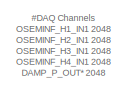
[diagram: SINGLE_OSEM_MASTER - part 1/6, top left region]
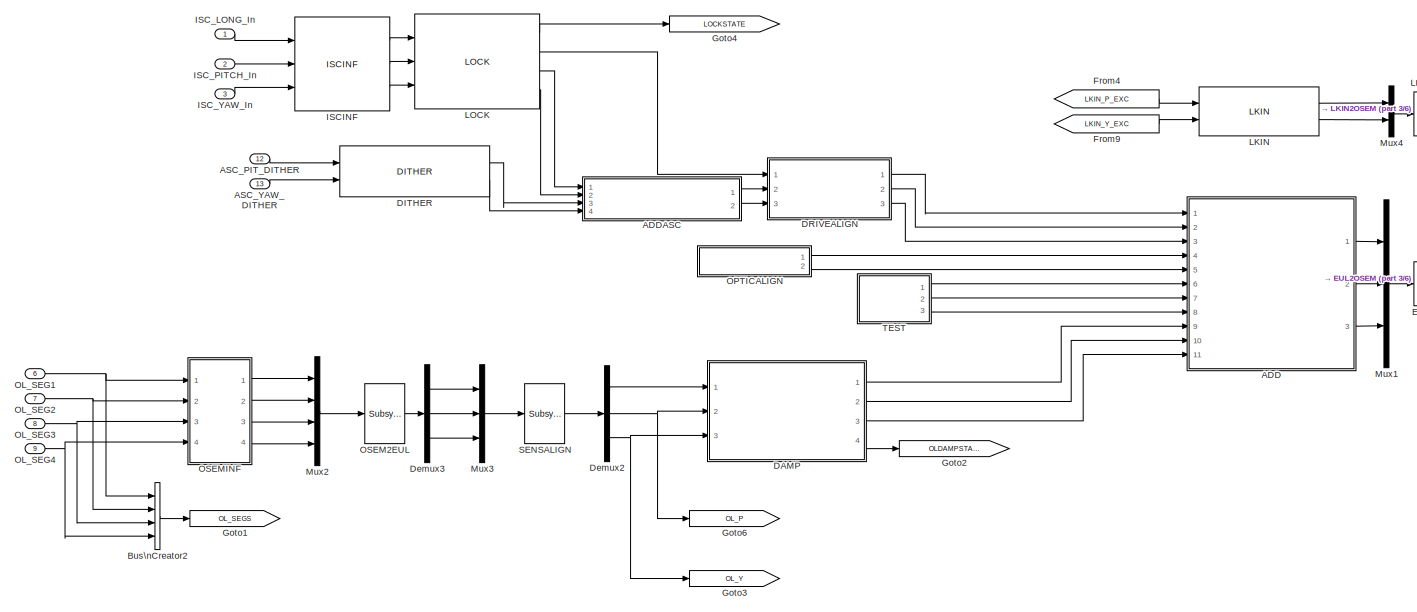
[diagram: SINGLE_OSEM_MASTER - part 2/6, top center region]
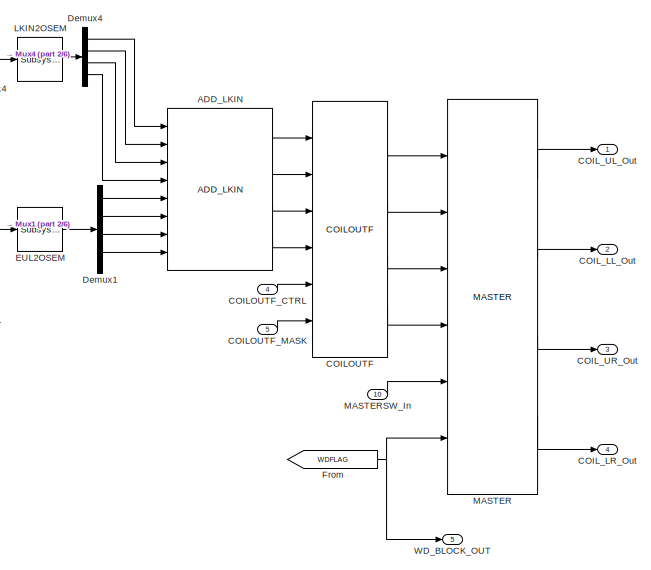
[diagram: SINGLE_OSEM_MASTER - part 3/6, top right region]
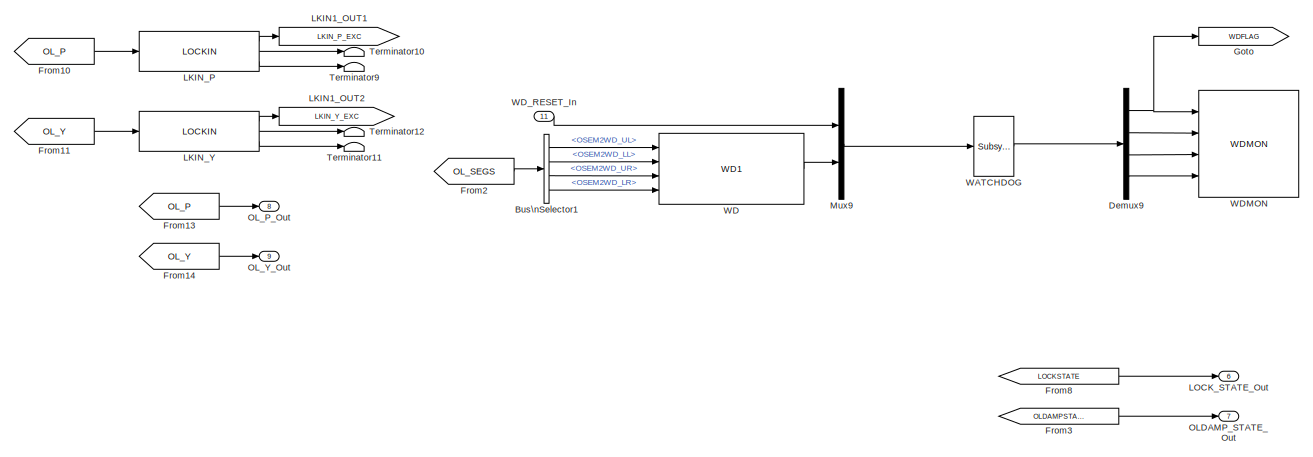
[diagram: SINGLE_OSEM_MASTER - part 4/6, middle right region]
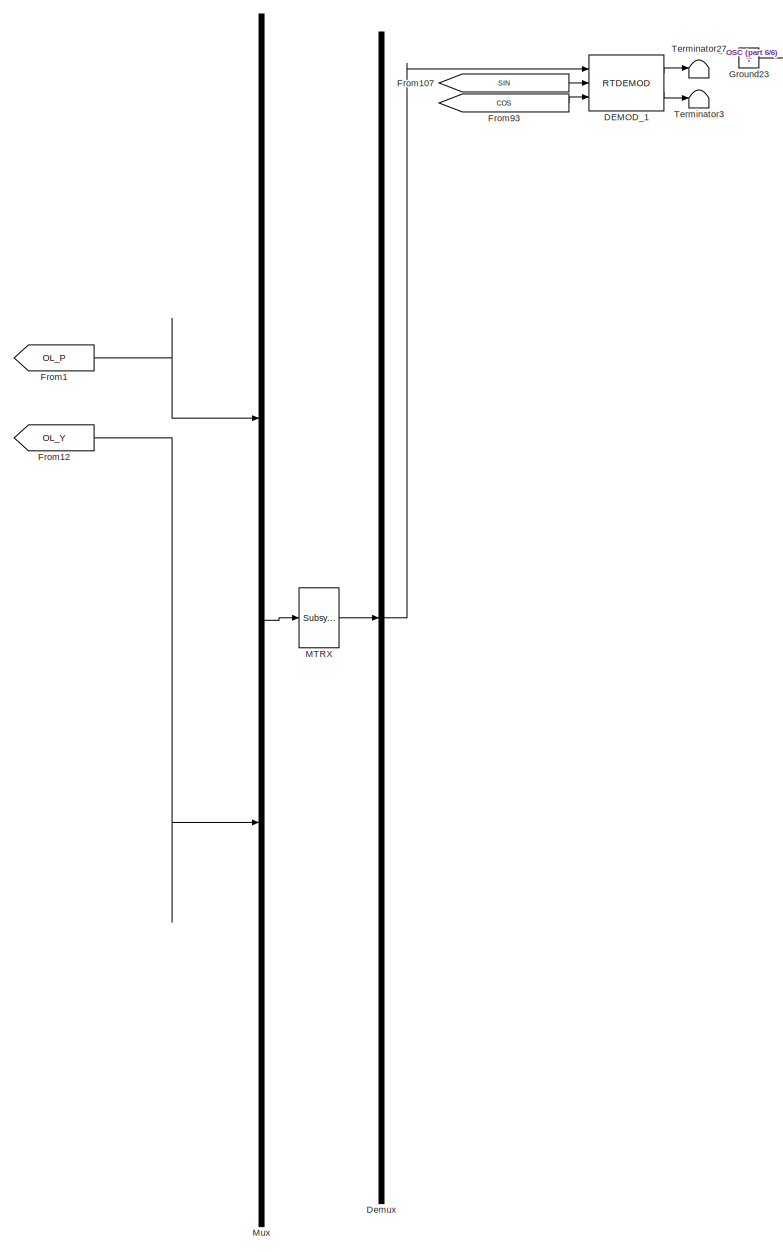
[diagram: SINGLE_OSEM_MASTER - part 5/6, bottom center region]
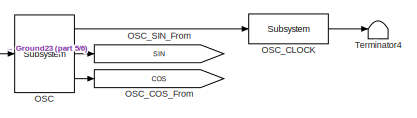
[diagram: SINGLE_OSEM_MASTER - part 6/6, middle right region]
BLOCK [SubSystem] SINGLE_OSEM_MASTER
  Ports = [13, 9]
  RequestExecContextInheritance = off
  SID = 261
  Variant = off
BLOCK [SubSystem] SINGLE_OSEM_MASTER/ADD
  Ports = [11, 3]
  RequestExecContextInheritance = off
  SID = 275
  Variant = off
BLOCK [Inport] SINGLE_OSEM_MASTER/ADD/DAMP_L_In
  IconDisplay = Port number
  Port = 9
  SID = 284
BLOCK [Inport] SINGLE_OSEM_MASTER/ADD/DAMP_P_In
  IconDisplay = Port number
  Port = 10
  SID = 285
BLOCK [Inport] SINGLE_OSEM_MASTER/ADD/DAMP_Y_In
  IconDisplay = Port number
  Port = 11
  SID = 286
BLOCK [Ground] SINGLE_OSEM_MASTER/ADD/Ground1
  SID = 287
BLOCK [Ground] SINGLE_OSEM_MASTER/ADD/Ground2
  SID = 288
BLOCK [Ground] SINGLE_OSEM_MASTER/ADD/Ground3
  SID = 289
BLOCK [Ground] SINGLE_OSEM_MASTER/ADD/Ground4
  SID = 290
BLOCK [Ground] SINGLE_OSEM_MASTER/ADD/Ground5
  SID = 291
BLOCK [Ground] SINGLE_OSEM_MASTER/ADD/Ground6
  SID = 292
BLOCK [Inport] SINGLE_OSEM_MASTER/ADD/ISC_L_In
  IconDisplay = Port number
  SID = 276
BLOCK [Inport] SINGLE_OSEM_MASTER/ADD/ISC_P_In
  IconDisplay = Port number
  Port = 2
  SID = 277
BLOCK [Inport] SINGLE_OSEM_MASTER/ADD/ISC_Y_In
  IconDisplay = Port number
  Port = 3
  SID = 278
BLOCK [Reference] SINGLE_OSEM_MASTER/ADD/L  REF=cdsFiltCtrl/IIR FM with control
  AttributesFormatString = %<Tag>
  Ports = [3, 2]
  SID = 293
  SourceBlock = cdsFiltCtrl/IIR FM with control
  SourceType = SubSystem
  Tag = cdsFiltCtrl
BLOCK [Outport] SINGLE_OSEM_MASTER/ADD/LONG_Out
  IconDisplay = Port number
  SID = 302
BLOCK [Inport] SINGLE_OSEM_MASTER/ADD/OFFSET_P_In
  IconDisplay = Port number
  Port = 4
  SID = 279
BLOCK [Inport] SINGLE_OSEM_MASTER/ADD/OFFSET_Y_In
  IconDisplay = Port number
  Port = 5
  SID = 280
BLOCK [Reference] SINGLE_OSEM_MASTER/ADD/P  REF=cdsFiltCtrl/IIR FM with control
  AttributesFormatString = %<Tag>
  Ports = [3, 2]
  SID = 294
  SourceBlock = cdsFiltCtrl/IIR FM with control
  SourceType = SubSystem
  Tag = cdsFiltCtrl
BLOCK [Outport] SINGLE_OSEM_MASTER/ADD/PITCH_Out
  IconDisplay = Port number
  Port = 2
  SID = 303
BLOCK [Sum] SINGLE_OSEM_MASTER/ADD/Sum
  InputSameDT = off
  Inputs = +++
  OutDataTypeStr = Inherit: Inherit via internal rule
  Ports = [3, 1]
  SID = 295
  SaturateOnIntegerOverflow = off
BLOCK [Sum] SINGLE_OSEM_MASTER/ADD/Sum3
  InputSameDT = off
  Inputs = ++++
  OutDataTypeStr = Inherit: Inherit via internal rule
  Ports = [4, 1]
  SID = 296
  SaturateOnIntegerOverflow = off
BLOCK [Sum] SINGLE_OSEM_MASTER/ADD/Sum4
  InputSameDT = off
  Inputs = ++++
  OutDataTypeStr = Inherit: Inherit via internal rule
  Ports = [4, 1]
  SID = 297
  SaturateOnIntegerOverflow = off
BLOCK [Inport] SINGLE_OSEM_MASTER/ADD/TEST_L_In
  IconDisplay = Port number
  Port = 6
  SID = 281
BLOCK [Inport] SINGLE_OSEM_MASTER/ADD/TEST_P_In
  IconDisplay = Port number
  Port = 7
  SID = 282
BLOCK [Inport] SINGLE_OSEM_MASTER/ADD/TEST_Y_In
  IconDisplay = Port number
  Port = 8
  SID = 283
BLOCK [Terminator] SINGLE_OSEM_MASTER/ADD/Terminator1
  SID = 298
BLOCK [Terminator] SINGLE_OSEM_MASTER/ADD/Terminator2
  SID = 299
BLOCK [Terminator] SINGLE_OSEM_MASTER/ADD/Terminator3
  SID = 300
BLOCK [Reference] SINGLE_OSEM_MASTER/ADD/Y  REF=cdsFiltCtrl/IIR FM with control
  AttributesFormatString = %<Tag>
  Ports = [3, 2]
  SID = 301
  SourceBlock = cdsFiltCtrl/IIR FM with control
  SourceType = SubSystem
  Tag = cdsFiltCtrl
BLOCK [Outport] SINGLE_OSEM_MASTER/ADD/YAW_Out
  IconDisplay = Port number
  Port = 3
  SID = 304
BLOCK [SubSystem] SINGLE_OSEM_MASTER/ADDASC
  Ports = [4, 2]
  RequestExecContextInheritance = off
  SID = 305
  Variant = off
BLOCK [Inport] SINGLE_OSEM_MASTER/ADDASC/DITHER_P_In
  IconDisplay = Port number
  Port = 3
  SID = 617
BLOCK [Inport] SINGLE_OSEM_MASTER/ADDASC/DITHER_Y_In
  IconDisplay = Port number
  Port = 4
  SID = 618
BLOCK [Inport] SINGLE_OSEM_MASTER/ADDASC/ISC_P_In
  IconDisplay = Port number
  SID = 615
BLOCK [Inport] SINGLE_OSEM_MASTER/ADDASC/ISC_Y_In
  IconDisplay = Port number
  Port = 2
  SID = 616
BLOCK [Outport] SINGLE_OSEM_MASTER/ADDASC/PITCH_Out
  IconDisplay = Port number
  SID = 625
BLOCK [Sum] SINGLE_OSEM_MASTER/ADDASC/Sum3
  InputSameDT = off
  OutDataTypeStr = Inherit: Inherit via internal rule
  Ports = [2, 1]
  SID = 623
  SaturateOnIntegerOverflow = off
BLOCK [Sum] SINGLE_OSEM_MASTER/ADDASC/Sum4
  InputSameDT = off
  OutDataTypeStr = Inherit: Inherit via internal rule
  Ports = [2, 1]
  SID = 624
  SaturateOnIntegerOverflow = off
BLOCK [Outport] SINGLE_OSEM_MASTER/ADDASC/YAW_Out
  IconDisplay = Port number
  Port = 2
  SID = 626
BLOCK [Reference] SINGLE_OSEM_MASTER/ADD_LKIN  REF=VIS_LIB/ADD_LKIN
  Ports = [8, 4]
  SID = 306
  SourceBlock = VIS_LIB/ADD_LKIN
  SourceType = SubSystem
BLOCK [Inport] SINGLE_OSEM_MASTER/ASC_PIT_DITHER
  IconDisplay = Port number
  Port = 12
  SID = 273
BLOCK [Inport] SINGLE_OSEM_MASTER/ASC_YAW_DITHER
  IconDisplay = Port number
  Port = 13
  SID = 274
BLOCK [BusCreator] SINGLE_OSEM_MASTER/Bus\nCreator2
  DisplayOption = bar
  InheritFromInputs = on
  Inputs = 'OSEM2WD_UL','OSEM2WD_LL','OSEM2WD_UR','OSEM2WD_LR'
  Ports = [4, 1]
  SID = 307
BLOCK [BusSelector] SINGLE_OSEM_MASTER/Bus\nSelector1
  OutputSignals = OSEM2WD_UL,OSEM2WD_LL,OSEM2WD_UR,OSEM2WD_LR
  Ports = [1, 4]
  SID = 308
BLOCK [Reference] SINGLE_OSEM_MASTER/COILOUTF  REF=FOUROSEM_COILOUTF_MASTER/COILOUTF
  Ports = [6, 4]
  SID = 309
  SourceBlock = FOUROSEM_COILOUTF_MASTER/COILOUTF
  SourceType = SubSystem
BLOCK [Inport] SINGLE_OSEM_MASTER/COILOUTF_CTRL
  IconDisplay = Port number
  Port = 4
  SID = 265
BLOCK [Inport] SINGLE_OSEM_MASTER/COILOUTF_MASK
  IconDisplay = Port number
  Port = 5
  SID = 266
BLOCK [Outport] SINGLE_OSEM_MASTER/COIL_LL_Out
  IconDisplay = Port number
  Port = 2
  SID = 480
BLOCK [Outport] SINGLE_OSEM_MASTER/COIL_LR_Out
  IconDisplay = Port number
  Port = 4
  SID = 482
BLOCK [Outport] SINGLE_OSEM_MASTER/COIL_UL_Out
  IconDisplay = Port number
  SID = 479
BLOCK [Outport] SINGLE_OSEM_MASTER/COIL_UR_Out
  IconDisplay = Port number
  Port = 3
  SID = 481
BLOCK [SubSystem] SINGLE_OSEM_MASTER/DAMP
  Ports = [3, 4]
  RequestExecContextInheritance = off
  SID = 551
  Variant = off
BLOCK [Outport] SINGLE_OSEM_MASTER/DAMP/DAMP_STATE_Out
  IconDisplay = Port number
  Port = 4
  SID = 608
BLOCK [Ground] SINGLE_OSEM_MASTER/DAMP/Ground10
  SID = 559
BLOCK [Ground] SINGLE_OSEM_MASTER/DAMP/Ground4
  SID = 564
BLOCK [Ground] SINGLE_OSEM_MASTER/DAMP/Ground5
  SID = 565
BLOCK [Ground] SINGLE_OSEM_MASTER/DAMP/Ground6
  SID = 566
BLOCK [Ground] SINGLE_OSEM_MASTER/DAMP/Ground7
  SID = 567
BLOCK [Ground] SINGLE_OSEM_MASTER/DAMP/Ground8
  SID = 568
BLOCK [Reference] SINGLE_OSEM_MASTER/DAMP/L  REF=cdsFiltCtrl/IIR FM with control
  AttributesFormatString = %<Tag>
  Ports = [3, 2]
  SID = 570
  SourceBlock = cdsFiltCtrl/IIR FM with control
  SourceType = SubSystem
  Tag = cdsFiltCtrl
BLOCK [Inport] SINGLE_OSEM_MASTER/DAMP/LONG_In
  IconDisplay = Port number
  SID = 552
BLOCK [Outport] SINGLE_OSEM_MASTER/DAMP/LONG_Out
  IconDisplay = Port number
  SID = 602
BLOCK [Reference] SINGLE_OSEM_MASTER/DAMP/L_STATE_GOOD  REF=cdsEpicsIn/Subsystem
  AttributesFormatString = %<Tag>
  Description = Purpose:                                                                              \nCreate an EPICS input channel connection to the FE realtime controls.                 \n                                                                                      \nOperation:                                                                            \nOutputs value from an EPICS ai record. Value is ...<+266ch>  <repeated x3 — deduplicated; at blocks: L_STATE_GOOD, P_STATE_GOOD, Y_STATE_GOOD>
  Ports = [0, 1]
  SID = 571
  SourceBlock = cdsEpicsIn/Subsystem
  SourceType = SubSystem
  Tag = cdsEpicsIn
BLOCK [Reference] SINGLE_OSEM_MASTER/DAMP/L_STATE_NOW  REF=cdsEpicsOut/Subsystem
  AttributesFormatString = %<Tag>
  Ports = [1, 1]
  SID = 572
  SourceBlock = cdsEpicsOut/Subsystem
  SourceType = SubSystem
  Tag = cdsEpicsOutput
BLOCK [Reference] SINGLE_OSEM_MASTER/DAMP/L_STATE_OK  REF=cdsEpicsOut/Subsystem
  AttributesFormatString = %<Tag>
  Ports = [1, 1]
  SID = 573
  SourceBlock = cdsEpicsOut/Subsystem
  SourceType = SubSystem
  Tag = cdsEpicsOutput
BLOCK [RelationalOperator] SINGLE_OSEM_MASTER/DAMP/Operator
  InputSameDT = off
  Operator = ==
  OutDataTypeStr = boolean
  Ports = [2, 1]
  SID = 574
BLOCK [RelationalOperator] SINGLE_OSEM_MASTER/DAMP/Operator4
  InputSameDT = off
  Operator = ==
  OutDataTypeStr = boolean
  Ports = [2, 1]
  SID = 578
BLOCK [RelationalOperator] SINGLE_OSEM_MASTER/DAMP/Operator5
  InputSameDT = off
  Operator = ==
  OutDataTypeStr = boolean
  Ports = [2, 1]
  SID = 579
BLOCK [Reference] SINGLE_OSEM_MASTER/DAMP/P  REF=cdsFiltCtrl/IIR FM with control
  AttributesFormatString = %<Tag>
  Ports = [3, 2]
  SID = 580
  SourceBlock = cdsFiltCtrl/IIR FM with control
  SourceType = SubSystem
  Tag = cdsFiltCtrl
BLOCK [Inport] SINGLE_OSEM_MASTER/DAMP/PITCH_In
  IconDisplay = Port number
  Port = 2
  SID = 556
BLOCK [Outport] SINGLE_OSEM_MASTER/DAMP/PITCH_Out
  IconDisplay = Port number
  Port = 2
  SID = 606
BLOCK [Reference] SINGLE_OSEM_MASTER/DAMP/P_STATE_GOOD  REF=cdsEpicsIn/Subsystem
  AttributesFormatString = %<Tag>
  Ports = [0, 1]
  SID = 581
  SourceBlock = cdsEpicsIn/Subsystem
  SourceType = SubSystem
  Tag = cdsEpicsIn
BLOCK [Reference] SINGLE_OSEM_MASTER/DAMP/P_STATE_NOW  REF=cdsEpicsOut/Subsystem
  AttributesFormatString = %<Tag>
  Ports = [1, 1]
  SID = 582
  SourceBlock = cdsEpicsOut/Subsystem
  SourceType = SubSystem
  Tag = cdsEpicsOutput
BLOCK [Reference] SINGLE_OSEM_MASTER/DAMP/P_STATE_OK  REF=cdsEpicsOut/Subsystem
  AttributesFormatString = %<Tag>
  Ports = [1, 1]
  SID = 583
  SourceBlock = cdsEpicsOut/Subsystem
  SourceType = SubSystem
  Tag = cdsEpicsOutput
BLOCK [Product] SINGLE_OSEM_MASTER/DAMP/Product
  InputSameDT = off
  Inputs = 3
  OutDataTypeStr = Inherit: Inherit via internal rule
  Ports = [3, 1]
  SID = 584
  SaturateOnIntegerOverflow = off
BLOCK [Reference] SINGLE_OSEM_MASTER/DAMP/STATE_OK  REF=cdsEpicsOut/Subsystem
  AttributesFormatString = %<Tag>
  Ports = [1, 1]
  SID = 589
  SourceBlock = cdsEpicsOut/Subsystem
  SourceType = SubSystem
  Tag = cdsEpicsOutput
BLOCK [Reference] SINGLE_OSEM_MASTER/DAMP/Y  REF=cdsFiltCtrl/IIR FM with control
  AttributesFormatString = %<Tag>
  Ports = [3, 2]
  SID = 598
  SourceBlock = cdsFiltCtrl/IIR FM with control
  SourceType = SubSystem
  Tag = cdsFiltCtrl
BLOCK [Inport] SINGLE_OSEM_MASTER/DAMP/YAW_In
  IconDisplay = Port number
  Port = 3
  SID = 557
BLOCK [Outport] SINGLE_OSEM_MASTER/DAMP/YAW_Out
  IconDisplay = Port number
  Port = 3
  SID = 607
BLOCK [Reference] SINGLE_OSEM_MASTER/DAMP/Y_STATE_GOOD  REF=cdsEpicsIn/Subsystem
  AttributesFormatString = %<Tag>
  Ports = [0, 1]
  SID = 599
  SourceBlock = cdsEpicsIn/Subsystem
  SourceType = SubSystem
  Tag = cdsEpicsIn
BLOCK [Reference] SINGLE_OSEM_MASTER/DAMP/Y_STATE_NOW  REF=cdsEpicsOut/Subsystem
  AttributesFormatString = %<Tag>
  Ports = [1, 1]
  SID = 600
  SourceBlock = cdsEpicsOut/Subsystem
  SourceType = SubSystem
  Tag = cdsEpicsOutput
BLOCK [Reference] SINGLE_OSEM_MASTER/DAMP/Y_STATE_OK  REF=cdsEpicsOut/Subsystem
  AttributesFormatString = %<Tag>
  Ports = [1, 1]
  SID = 601
  SourceBlock = cdsEpicsOut/Subsystem
  SourceType = SubSystem
  Tag = cdsEpicsOutput
BLOCK [Reference] SINGLE_OSEM_MASTER/DEMOD_1  REF=rtdemod/RTDEMOD
  Ports = [3, 2]
  SID = 310
  SourceBlock = rtdemod/RTDEMOD
  SourceType = SubSystem
  Tag = top_names
BLOCK [Reference] SINGLE_OSEM_MASTER/DITHER  REF=VIS_LIB/DITHER
  Ports = [2, 2]
  SID = 311
  SourceBlock = VIS_LIB/DITHER
  SourceType = SubSystem
BLOCK [SubSystem] SINGLE_OSEM_MASTER/DRIVEALIGN
  Ports = [3, 3]
  RequestExecContextInheritance = off
  SID = 312
  Variant = off
BLOCK [Reference] SINGLE_OSEM_MASTER/DRIVEALIGN/L2L  REF=cdsFilt/Subsystem
  AttributesFormatString = %<Tag>
  Ports = [1, 1]
  SID = 316
  SourceBlock = cdsFilt/Subsystem
  SourceType = SubSystem
  Tag = cdsFilt
BLOCK [Reference] SINGLE_OSEM_MASTER/DRIVEALIGN/L2P  REF=cdsFilt/Subsystem
  AttributesFormatString = %<Tag>
  Ports = [1, 1]
  SID = 317
  SourceBlock = cdsFilt/Subsystem
  SourceType = SubSystem
  Tag = cdsFilt
BLOCK [Reference] SINGLE_OSEM_MASTER/DRIVEALIGN/L2Y  REF=cdsFilt/Subsystem
  AttributesFormatString = %<Tag>
  Ports = [1, 1]
  SID = 318
  SourceBlock = cdsFilt/Subsystem
  SourceType = SubSystem
  Tag = cdsFilt
BLOCK [Inport] SINGLE_OSEM_MASTER/DRIVEALIGN/LONG_In
  IconDisplay = Port number
  SID = 313
BLOCK [Outport] SINGLE_OSEM_MASTER/DRIVEALIGN/LONG_Out
  IconDisplay = Port number
  SID = 340
BLOCK [Reference] SINGLE_OSEM_MASTER/DRIVEALIGN/L_IN  REF=cdsTP/Subsystem
  AttributesFormatString = %<Tag>
  Ports = [1]
  SID = 319
  SourceBlock = cdsTP/Subsystem
  SourceType = SubSystem
  Tag = Test Point
BLOCK [Reference] SINGLE_OSEM_MASTER/DRIVEALIGN/L_INMON  REF=cdsEpicsOut/Subsystem
  AttributesFormatString = %<Tag>
  Ports = [1, 1]
  SID = 320
  SourceBlock = cdsEpicsOut/Subsystem
  SourceType = SubSystem
  Tag = cdsEpicsOutput
BLOCK [Reference] SINGLE_OSEM_MASTER/DRIVEALIGN/L_OUT  REF=cdsTP/Subsystem
  AttributesFormatString = %<Tag>
  Ports = [1]
  SID = 321
  SourceBlock = cdsTP/Subsystem
  SourceType = SubSystem
  Tag = Test Point
BLOCK [Reference] SINGLE_OSEM_MASTER/DRIVEALIGN/L_OUTMON  REF=cdsEpicsOut/Subsystem
  AttributesFormatString = %<Tag>
  Ports = [1, 1]
  SID = 322
  SourceBlock = cdsEpicsOut/Subsystem
  SourceType = SubSystem
  Tag = cdsEpicsOutput
BLOCK [Reference] SINGLE_OSEM_MASTER/DRIVEALIGN/P2L  REF=cdsFilt/Subsystem
  AttributesFormatString = %<Tag>
  Ports = [1, 1]
  SID = 323
  SourceBlock = cdsFilt/Subsystem
  SourceType = SubSystem
  Tag = cdsFilt
BLOCK [Reference] SINGLE_OSEM_MASTER/DRIVEALIGN/P2P  REF=cdsFilt/Subsystem
  AttributesFormatString = %<Tag>
  Ports = [1, 1]
  SID = 324
  SourceBlock = cdsFilt/Subsystem
  SourceType = SubSystem
  Tag = cdsFilt
BLOCK [Reference] SINGLE_OSEM_MASTER/DRIVEALIGN/P2Y  REF=cdsFilt/Subsystem
  AttributesFormatString = %<Tag>
  Ports = [1, 1]
  SID = 325
  SourceBlock = cdsFilt/Subsystem
  SourceType = SubSystem
  Tag = cdsFilt
BLOCK [Inport] SINGLE_OSEM_MASTER/DRIVEALIGN/PITCH_In
  IconDisplay = Port number
  Port = 2
  SID = 314
BLOCK [Outport] SINGLE_OSEM_MASTER/DRIVEALIGN/PITCH_Out
  IconDisplay = Port number
  Port = 2
  SID = 341
BLOCK [Reference] SINGLE_OSEM_MASTER/DRIVEALIGN/P_IN  REF=cdsTP/Subsystem
  AttributesFormatString = %<Tag>
  Ports = [1]
  SID = 326
  SourceBlock = cdsTP/Subsystem
  SourceType = SubSystem
  Tag = Test Point
BLOCK [Reference] SINGLE_OSEM_MASTER/DRIVEALIGN/P_INMON  REF=cdsEpicsOut/Subsystem
  AttributesFormatString = %<Tag>
  Ports = [1, 1]
  SID = 327
  SourceBlock = cdsEpicsOut/Subsystem
  SourceType = SubSystem
  Tag = cdsEpicsOutput
BLOCK [Reference] SINGLE_OSEM_MASTER/DRIVEALIGN/P_OUT  REF=cdsTP/Subsystem
  AttributesFormatString = %<Tag>
  Ports = [1]
  SID = 328
  SourceBlock = cdsTP/Subsystem
  SourceType = SubSystem
  Tag = Test Point
BLOCK [Reference] SINGLE_OSEM_MASTER/DRIVEALIGN/P_OUTMON  REF=cdsEpicsOut/Subsystem
  AttributesFormatString = %<Tag>
  Ports = [1, 1]
  SID = 329
  SourceBlock = cdsEpicsOut/Subsystem
  SourceType = SubSystem
  Tag = cdsEpicsOutput
BLOCK [Sum] SINGLE_OSEM_MASTER/DRIVEALIGN/Sum
  InputSameDT = off
  Inputs = +++
  OutDataTypeStr = Inherit: Inherit via internal rule
  Ports = [3, 1]
  SID = 330
  SaturateOnIntegerOverflow = off
BLOCK [Sum] SINGLE_OSEM_MASTER/DRIVEALIGN/Sum1
  InputSameDT = off
  Inputs = +++
  OutDataTypeStr = Inherit: Inherit via internal rule
  Ports = [3, 1]
  SID = 331
  SaturateOnIntegerOverflow = off
BLOCK [Sum] SINGLE_OSEM_MASTER/DRIVEALIGN/Sum2
  InputSameDT = off
  Inputs = +++
  OutDataTypeStr = Inherit: Inherit via internal rule
  Ports = [3, 1]
  SID = 332
  SaturateOnIntegerOverflow = off
BLOCK [Reference] SINGLE_OSEM_MASTER/DRIVEALIGN/Y2L  REF=cdsFilt/Subsystem
  AttributesFormatString = %<Tag>
  Ports = [1, 1]
  SID = 333
  SourceBlock = cdsFilt/Subsystem
  SourceType = SubSystem
  Tag = cdsFilt
BLOCK [Reference] SINGLE_OSEM_MASTER/DRIVEALIGN/Y2P  REF=cdsFilt/Subsystem
  AttributesFormatString = %<Tag>
  Ports = [1, 1]
  SID = 334
  SourceBlock = cdsFilt/Subsystem
  SourceType = SubSystem
  Tag = cdsFilt
BLOCK [Reference] SINGLE_OSEM_MASTER/DRIVEALIGN/Y2Y  REF=cdsFilt/Subsystem
  AttributesFormatString = %<Tag>
  Ports = [1, 1]
  SID = 335
  SourceBlock = cdsFilt/Subsystem
  SourceType = SubSystem
  Tag = cdsFilt
BLOCK [Inport] SINGLE_OSEM_MASTER/DRIVEALIGN/YAW_In
  IconDisplay = Port number
  Port = 3
  SID = 315
BLOCK [Outport] SINGLE_OSEM_MASTER/DRIVEALIGN/YAW_Out
  IconDisplay = Port number
  Port = 3
  SID = 342
BLOCK [Reference] SINGLE_OSEM_MASTER/DRIVEALIGN/Y_IN  REF=cdsTP/Subsystem
  AttributesFormatString = %<Tag>
  Ports = [1]
  SID = 336
  SourceBlock = cdsTP/Subsystem
  SourceType = SubSystem
  Tag = Test Point
BLOCK [Reference] SINGLE_OSEM_MASTER/DRIVEALIGN/Y_INMON  REF=cdsEpicsOut/Subsystem
  AttributesFormatString = %<Tag>
  Ports = [1, 1]
  SID = 337
  SourceBlock = cdsEpicsOut/Subsystem
  SourceType = SubSystem
  Tag = cdsEpicsOutput
BLOCK [Reference] SINGLE_OSEM_MASTER/DRIVEALIGN/Y_OUT  REF=cdsTP/Subsystem
  AttributesFormatString = %<Tag>
  Ports = [1]
  SID = 338
  SourceBlock = cdsTP/Subsystem
  SourceType = SubSystem
  Tag = Test Point
BLOCK [Reference] SINGLE_OSEM_MASTER/DRIVEALIGN/Y_OUTMON  REF=cdsEpicsOut/Subsystem
  AttributesFormatString = %<Tag>
  Ports = [1, 1]
  SID = 339
  SourceBlock = cdsEpicsOut/Subsystem
  SourceType = SubSystem
  Tag = cdsEpicsOutput
BLOCK [Demux] SINGLE_OSEM_MASTER/Demux
  DisplayOption = bar
  Outputs = 1
  Ports = [1, 1]
  SID = 344
BLOCK [Demux] SINGLE_OSEM_MASTER/Demux1
  DisplayOption = bar
  Ports = [1, 4]
  SID = 345
BLOCK [Demux] SINGLE_OSEM_MASTER/Demux2
  DisplayOption = bar
  Outputs = 3
  Ports = [1, 3]
  SID = 673
BLOCK [Demux] SINGLE_OSEM_MASTER/Demux3
  DisplayOption = bar
  Outputs = 3
  Ports = [1, 3]
  SID = 674
BLOCK [Demux] SINGLE_OSEM_MASTER/Demux4
  DisplayOption = bar
  Ports = [1, 4]
  SID = 346
BLOCK [Demux] SINGLE_OSEM_MASTER/Demux9
  DisplayOption = bar
  Ports = [1, 4]
  SID = 347
BLOCK [Reference] SINGLE_OSEM_MASTER/EUL2OSEM  REF=cdsMuxMatrix/Subsystem
  AttributesFormatString = %<Tag>
  Description = Any size matrix. Inputs and outputs must be connected using Mux and Demux parts.
  Ports = [1, 1]
  SID = 348
  SourceBlock = cdsMuxMatrix/Subsystem
  SourceType = SubSystem
  Tag = cdsMuxMatrix
BLOCK [From] SINGLE_OSEM_MASTER/From
  CloseFcn = tagdialog Close
  GotoTag = WDFLAG
  SID = 349
BLOCK [From] SINGLE_OSEM_MASTER/From1
  CloseFcn = tagdialog Close
  GotoTag = OL_P
  SID = 350
BLOCK [From] SINGLE_OSEM_MASTER/From10
  CloseFcn = tagdialog Close
  GotoTag = OL_P
  SID = 351
BLOCK [From] SINGLE_OSEM_MASTER/From107
  GotoTag = SIN
  SID = 352
BLOCK [From] SINGLE_OSEM_MASTER/From11
  CloseFcn = tagdialog Close
  GotoTag = OL_Y
  SID = 353
BLOCK [From] SINGLE_OSEM_MASTER/From12
  CloseFcn = tagdialog Close
  GotoTag = OL_Y
  SID = 354
BLOCK [From] SINGLE_OSEM_MASTER/From13
  CloseFcn = tagdialog Close
  GotoTag = OL_P
  SID = 355
BLOCK [From] SINGLE_OSEM_MASTER/From14
  CloseFcn = tagdialog Close
  GotoTag = OL_Y
  SID = 356
BLOCK [From] SINGLE_OSEM_MASTER/From2
  CloseFcn = tagdialog Close
  GotoTag = OL_SEGS
  SID = 357
BLOCK [From] SINGLE_OSEM_MASTER/From3
  CloseFcn = tagdialog Close
  GotoTag = OLDAMPSTATE
  SID = 358
BLOCK [From] SINGLE_OSEM_MASTER/From4
  CloseFcn = tagdialog Close
  GotoTag = LKIN_P_EXC
  SID = 359
BLOCK [From] SINGLE_OSEM_MASTER/From8
  CloseFcn = tagdialog Close
  GotoTag = LOCKSTATE
  SID = 362
BLOCK [From] SINGLE_OSEM_MASTER/From9
  CloseFcn = tagdialog Close
  GotoTag = LKIN_Y_EXC
  SID = 363
BLOCK [From] SINGLE_OSEM_MASTER/From93
  GotoTag = COS
  SID = 364
BLOCK [Goto] SINGLE_OSEM_MASTER/Goto
  GotoTag = WDFLAG
  SID = 365
BLOCK [Goto] SINGLE_OSEM_MASTER/Goto1
  GotoTag = OL_SEGS
  SID = 366
BLOCK [Goto] SINGLE_OSEM_MASTER/Goto2
  GotoTag = OLDAMPSTATE
  SID = 367
BLOCK [Goto] SINGLE_OSEM_MASTER/Goto3
  GotoTag = OL_Y
  SID = 549
BLOCK [Goto] SINGLE_OSEM_MASTER/Goto4
  GotoTag = LOCKSTATE
  SID = 368
BLOCK [Goto] SINGLE_OSEM_MASTER/Goto6
  GotoTag = OL_P
  SID = 370
BLOCK [Ground] SINGLE_OSEM_MASTER/Ground23
  SID = 372
BLOCK [Reference] SINGLE_OSEM_MASTER/ISCINF  REF=VIS_LIB/ISCINF
  Ports = [3, 3]
  SID = 373
  SourceBlock = VIS_LIB/ISCINF
  SourceType = SubSystem
BLOCK [Inport] SINGLE_OSEM_MASTER/ISC_LONG_In
  IconDisplay = Port number
  SID = 262
BLOCK [Inport] SINGLE_OSEM_MASTER/ISC_PITCH_In
  IconDisplay = Port number
  Port = 2
  SID = 263
BLOCK [Inport] SINGLE_OSEM_MASTER/ISC_YAW_In
  IconDisplay = Port number
  Port = 3
  SID = 264
BLOCK [Reference] SINGLE_OSEM_MASTER/LKIN  REF=VIS_LIB/LKIN
  Ports = [2, 2]
  SID = 374
  SourceBlock = VIS_LIB/LKIN
  SourceType = SubSystem
BLOCK [Goto] SINGLE_OSEM_MASTER/LKIN1_OUT1
  GotoTag = LKIN_P_EXC
  SID = 375
BLOCK [Goto] SINGLE_OSEM_MASTER/LKIN1_OUT2
  GotoTag = LKIN_Y_EXC
  SID = 376
BLOCK [Reference] SINGLE_OSEM_MASTER/LKIN2OSEM  REF=cdsMuxMatrix/Subsystem
  AttributesFormatString = %<Tag>
  Description = Any size matrix. Inputs and outputs must be connected using Mux and Demux parts.
  Ports = [1, 1]
  SID = 377
  SourceBlock = cdsMuxMatrix/Subsystem
  SourceType = SubSystem
  Tag = cdsMuxMatrix
BLOCK [Reference] SINGLE_OSEM_MASTER/LKIN_P  REF=lockin/LOCKIN
  AttributesFormatString = %<Tag>
  Description = ADL=LOCKIN.adl
  Ports = [1, 3]
  SID = 378
  SourceBlock = lockin/LOCKIN
  SourceType = SubSystem
BLOCK [Reference] SINGLE_OSEM_MASTER/LKIN_Y  REF=lockin/LOCKIN
  AttributesFormatString = %<Tag>
  Description = ADL=LOCKIN.adl
  Ports = [1, 3]
  SID = 379
  SourceBlock = lockin/LOCKIN
  SourceType = SubSystem
BLOCK [Reference] SINGLE_OSEM_MASTER/LOCK  REF=VIS_LIB/LOCK
  Ports = [3, 4]
  SID = 380
  SourceBlock = VIS_LIB/LOCK
  SourceType = SubSystem
BLOCK [Outport] SINGLE_OSEM_MASTER/LOCK_STATE_Out
  IconDisplay = Port number
  Port = 6
  SID = 484
BLOCK [Reference] SINGLE_OSEM_MASTER/MASTER  REF=CRYP_TM_MASTER/CRYP_TM_MASTER/MASTER
  Ports = [6, 4]
  SID = 381
  SourceBlock = CRYP_TM_MASTER/CRYP_TM_MASTER/MASTER
  SourceType = SubSystem
BLOCK [Inport] SINGLE_OSEM_MASTER/MASTERSW_In
  IconDisplay = Port number
  Port = 10
  SID = 271
BLOCK [Reference] SINGLE_OSEM_MASTER/MTRX  REF=cdsMuxMatrix/Subsystem
  AttributesFormatString = %<Tag>
  Description = Any size matrix. Inputs and outputs must be connected using Mux and Demux parts.
  Ports = [1, 1]
  SID = 382
  SourceBlock = cdsMuxMatrix/Subsystem
  SourceType = SubSystem
  Tag = cdsMuxMatrix
BLOCK [Mux] SINGLE_OSEM_MASTER/Mux
  DisplayOption = bar
  Inputs = 2
  Ports = [2, 1]
  SID = 383
BLOCK [Mux] SINGLE_OSEM_MASTER/Mux1
  DisplayOption = bar
  Inputs = 3
  Ports = [3, 1]
  SID = 384
BLOCK [Mux] SINGLE_OSEM_MASTER/Mux2
  DisplayOption = bar
  Ports = [4, 1]
  SID = 680
BLOCK [Mux] SINGLE_OSEM_MASTER/Mux3
  DisplayOption = bar
  Inputs = 3
  Ports = [3, 1]
  SID = 681
BLOCK [Mux] SINGLE_OSEM_MASTER/Mux4
  DisplayOption = bar
  Inputs = 2
  Ports = [2, 1]
  SID = 385
BLOCK [Mux] SINGLE_OSEM_MASTER/Mux9
  DisplayOption = bar
  Inputs = 2
  Ports = [2, 1]
  SID = 386
BLOCK [Outport] SINGLE_OSEM_MASTER/OLDAMP_STATE_Out
  IconDisplay = Port number
  Port = 7
  SID = 485
BLOCK [Outport] SINGLE_OSEM_MASTER/OL_P_Out
  IconDisplay = Port number
  Port = 8
  SID = 486
BLOCK [Inport] SINGLE_OSEM_MASTER/OL_SEG1
  IconDisplay = Port number
  Port = 6
  SID = 267
BLOCK [Inport] SINGLE_OSEM_MASTER/OL_SEG2
  IconDisplay = Port number
  Port = 7
  SID = 268
BLOCK [Inport] SINGLE_OSEM_MASTER/OL_SEG3
  IconDisplay = Port number
  Port = 8
  SID = 269
BLOCK [Inport] SINGLE_OSEM_MASTER/OL_SEG4
  IconDisplay = Port number
  Port = 9
  SID = 270
BLOCK [Outport] SINGLE_OSEM_MASTER/OL_Y_Out
  IconDisplay = Port number
  Port = 9
  SID = 487
BLOCK [SubSystem] SINGLE_OSEM_MASTER/OPTICALIGN
  Ports = [0, 2]
  RequestExecContextInheritance = off
  SID = 441
  Variant = off
BLOCK [Ground] SINGLE_OSEM_MASTER/OPTICALIGN/Ground1
  SID = 442
BLOCK [Ground] SINGLE_OSEM_MASTER/OPTICALIGN/Ground2
  SID = 443
BLOCK [Reference] SINGLE_OSEM_MASTER/OPTICALIGN/P  REF=cdsFilt/Subsystem
  AttributesFormatString = %<Tag>
  Ports = [1, 1]
  SID = 444
  SourceBlock = cdsFilt/Subsystem
  SourceType = SubSystem
  Tag = cdsFilt
BLOCK [Outport] SINGLE_OSEM_MASTER/OPTICALIGN/PITCH_Out
  IconDisplay = Port number
  SID = 446
BLOCK [Reference] SINGLE_OSEM_MASTER/OPTICALIGN/Y  REF=cdsFilt/Subsystem
  AttributesFormatString = %<Tag>
  Ports = [1, 1]
  SID = 445
  SourceBlock = cdsFilt/Subsystem
  SourceType = SubSystem
  Tag = cdsFilt
BLOCK [Outport] SINGLE_OSEM_MASTER/OPTICALIGN/YAW_Out
  IconDisplay = Port number
  Port = 2
  SID = 447
BLOCK [Reference] SINGLE_OSEM_MASTER/OSC  REF=cdsOsc/Subsystem
  AttributesFormatString = %<Tag>
  Description = Oscillator
  Ports = [1, 3]
  SID = 448
  SourceBlock = cdsOsc/Subsystem
  SourceType = SubSystem
  Tag = cdsOsc
BLOCK [Reference] SINGLE_OSEM_MASTER/OSC_CLOCK  REF=cdsEpicsOut/Subsystem
  AttributesFormatString = %<Tag>
  Ports = [1, 1]
  SID = 449
  SourceBlock = cdsEpicsOut/Subsystem
  SourceType = SubSystem
  Tag = cdsEpicsOutput
BLOCK [Goto] SINGLE_OSEM_MASTER/OSC_COS_From
  GotoTag = COS
  SID = 450
BLOCK [Goto] SINGLE_OSEM_MASTER/OSC_SIN_From
  GotoTag = SIN
  SID = 451
BLOCK [Reference] SINGLE_OSEM_MASTER/OSEM2EUL  REF=cdsMuxMatrix/Subsystem
  AttributesFormatString = %<Tag>
  Description = Any size matrix. Inputs and outputs must be connected using Mux and Demux parts.
  Ports = [1, 1]
  SID = 682
  SourceBlock = cdsMuxMatrix/Subsystem
  SourceType = SubSystem
  Tag = cdsMuxMatrix
BLOCK [SubSystem] SINGLE_OSEM_MASTER/OSEMINF
  Ports = [4, 4]
  RequestExecContextInheritance = off
  SID = 689
  Variant = off
BLOCK [Reference] SINGLE_OSEM_MASTER/OSEMINF/H1  REF=cdsFilt/Subsystem
  AttributesFormatString = %<Tag>
  Ports = [1, 1]
  SID = 675
  SourceBlock = cdsFilt/Subsystem
  SourceType = SubSystem
  Tag = cdsFilt
BLOCK [Reference] SINGLE_OSEM_MASTER/OSEMINF/H2  REF=cdsFilt/Subsystem
  AttributesFormatString = %<Tag>
  Ports = [1, 1]
  SID = 676
  SourceBlock = cdsFilt/Subsystem
  SourceType = SubSystem
  Tag = cdsFilt
BLOCK [Reference] SINGLE_OSEM_MASTER/OSEMINF/H3  REF=cdsFilt/Subsystem
  AttributesFormatString = %<Tag>
  Ports = [1, 1]
  SID = 677
  SourceBlock = cdsFilt/Subsystem
  SourceType = SubSystem
  Tag = cdsFilt
BLOCK [Reference] SINGLE_OSEM_MASTER/OSEMINF/H4  REF=cdsFilt/Subsystem
  AttributesFormatString = %<Tag>
  Ports = [1, 1]
  SID = 678
  SourceBlock = cdsFilt/Subsystem
  SourceType = SubSystem
  Tag = cdsFilt
BLOCK [Inport] SINGLE_OSEM_MASTER/OSEMINF/In1
  IconDisplay = Port number
  SID = 690
BLOCK [Inport] SINGLE_OSEM_MASTER/OSEMINF/In2
  IconDisplay = Port number
  Port = 2
  SID = 691
BLOCK [Inport] SINGLE_OSEM_MASTER/OSEMINF/In3
  IconDisplay = Port number
  Port = 3
  SID = 692
BLOCK [Inport] SINGLE_OSEM_MASTER/OSEMINF/In4
  IconDisplay = Port number
  Port = 4
  SID = 693
BLOCK [Outport] SINGLE_OSEM_MASTER/OSEMINF/Out1
  IconDisplay = Port number
  SID = 694
BLOCK [Outport] SINGLE_OSEM_MASTER/OSEMINF/Out2
  IconDisplay = Port number
  Port = 2
  SID = 695
BLOCK [Outport] SINGLE_OSEM_MASTER/OSEMINF/Out3
  IconDisplay = Port number
  Port = 3
  SID = 696
BLOCK [Outport] SINGLE_OSEM_MASTER/OSEMINF/Out4
  IconDisplay = Port number
  Port = 4
  SID = 697
BLOCK [Reference] SINGLE_OSEM_MASTER/SENSALIGN  REF=cdsMuxMatrix/Subsystem
  AttributesFormatString = %<Tag>
  Description = Any size matrix. Inputs and outputs must be connected using Mux and Demux parts.
  Ports = [1, 1]
  SID = 684
  SourceBlock = cdsMuxMatrix/Subsystem
  SourceType = SubSystem
  Tag = cdsMuxMatrix
BLOCK [SubSystem] SINGLE_OSEM_MASTER/TEST
  Ports = [0, 3]
  RequestExecContextInheritance = off
  SID = 454
  Variant = off
BLOCK [Ground] SINGLE_OSEM_MASTER/TEST/Ground
  SID = 455
BLOCK [Ground] SINGLE_OSEM_MASTER/TEST/Ground1
  SID = 456
BLOCK [Ground] SINGLE_OSEM_MASTER/TEST/Ground2
  SID = 457
BLOCK [Reference] SINGLE_OSEM_MASTER/TEST/L  REF=cdsFilt/Subsystem
  AttributesFormatString = %<Tag>
  Ports = [1, 1]
  SID = 458
  SourceBlock = cdsFilt/Subsystem
  SourceType = SubSystem
  Tag = cdsFilt
BLOCK [Outport] SINGLE_OSEM_MASTER/TEST/LONG_Out
  IconDisplay = Port number
  SID = 461
BLOCK [Reference] SINGLE_OSEM_MASTER/TEST/P  REF=cdsFilt/Subsystem
  AttributesFormatString = %<Tag>
  Ports = [1, 1]
  SID = 459
  SourceBlock = cdsFilt/Subsystem
  SourceType = SubSystem
  Tag = cdsFilt
BLOCK [Outport] SINGLE_OSEM_MASTER/TEST/PITCH_Out
  IconDisplay = Port number
  Port = 2
  SID = 462
BLOCK [Reference] SINGLE_OSEM_MASTER/TEST/Y  REF=cdsFilt/Subsystem
  AttributesFormatString = %<Tag>
  Ports = [1, 1]
  SID = 460
  SourceBlock = cdsFilt/Subsystem
  SourceType = SubSystem
  Tag = cdsFilt
BLOCK [Outport] SINGLE_OSEM_MASTER/TEST/YAW_Out
  IconDisplay = Port number
  Port = 3
  SID = 463
BLOCK [Terminator] SINGLE_OSEM_MASTER/Terminator10
  SID = 464
BLOCK [Terminator] SINGLE_OSEM_MASTER/Terminator11
  SID = 465
BLOCK [Terminator] SINGLE_OSEM_MASTER/Terminator12
  SID = 466
BLOCK [Terminator] SINGLE_OSEM_MASTER/Terminator27
  SID = 468
BLOCK [Terminator] SINGLE_OSEM_MASTER/Terminator3
  SID = 469
BLOCK [Terminator] SINGLE_OSEM_MASTER/Terminator4
  SID = 470
BLOCK [Terminator] SINGLE_OSEM_MASTER/Terminator9
  SID = 475
BLOCK [Reference] SINGLE_OSEM_MASTER/WATCHDOG  REF=cdsFunctionCall/Subsystem
  AttributesFormatString = %<Tag>\\n%<Description>
  Description = inline OSEMWATCHDOG <path>
  Ports = [1, 1]
  SID = 476
  SourceBlock = cdsFunctionCall/Subsystem
  SourceType = SubSystem
  Tag = cdsFunctionCall
BLOCK [Reference] SINGLE_OSEM_MASTER/WD  REF=VIS_LIB/WD1
  Ports = [4, 1]
  SID = 477
  SourceBlock = VIS_LIB/WD1
  SourceType = SubSystem
BLOCK [Reference] SINGLE_OSEM_MASTER/WDMON  REF=VIS_LIB/WDMON
  Ports = [4]
  SID = 478
  SourceBlock = VIS_LIB/WDMON
  SourceType = SubSystem
BLOCK [Outport] SINGLE_OSEM_MASTER/WD_BLOCK_OUT
  IconDisplay = Port number
  Port = 5
  SID = 483
BLOCK [Inport] SINGLE_OSEM_MASTER/WD_RESET_In
  IconDisplay = Port number
  Port = 11
  SID = 272
ANNOTATION SINGLE_OPLEV_NOOSEM_MASTER: #DAQ Channels\nOPLEV_SEG1_IN1 2048\nOPLEV_SEG2_IN1 2048\nOPLEV_SEG3_IN1 2048\nOPLEV_SEG4_IN1 2048\nOPLEV_PIT_OUT* 2048\nOPLEV_YAW_OUT* 2048\nOPLEV_SUM_OUT 2048\nISCINF_L_IN1 2048
ANNOTATION SINGLE_OPLEV_NOOSEM_MASTER/DRIVEALIGN: This could/should be replaced by\nthe CDS_PART cdsFiltMuxMatrix,\nbut I'm not sure how that works \nin MEDM land just yet \n-- JSK Feb 2011
ANNOTATION SINGLE_OSEM_MASTER: #DAQ Channels\nOSEMINF_H1_IN1 2048\nOSEMINF_H2_IN1 2048\nOSEMINF_H3_IN1 2048\nOSEMINF_H4_IN1 2048\nDAMP_P_OUT* 2048\nDAMP_Y_OUT* 2048\nDAMP_L_OUT 2048\nDAMP_P_IN1 2048\nDAMP_Y_IN1 2048\nDAMP_L_IN1 2048\nISCINF_L_IN1 2048
ANNOTATION SINGLE_OSEM_MASTER/DAMP: 1 (one) if GOOD\n0 (zero) if BAD
ANNOTATION SINGLE_OSEM_MASTER/DAMP: Each DAMP filter output bitword is \ncompared against a known good state.\nIf equal to good state, then a 1 is output \nand multiplied into the product. So, if any DOF\nis not in its good state, the whole product is 0.
ANNOTATION SINGLE_OSEM_MASTER/DRIVEALIGN: This could/should be replaced by\nthe CDS_PART cdsFiltMuxMatrix,\nbut I'm not sure how that works \nin MEDM land just yet \n-- JSK Feb 2011
LINE SINGLE_OPLEV_NOOSEM_MASTER/ADD/DAMP_L_In:1 -> SINGLE_OPLEV_NOOSEM_MASTER/ADD/Sum:3
LINE SINGLE_OPLEV_NOOSEM_MASTER/ADD/DAMP_P_In:1 -> SINGLE_OPLEV_NOOSEM_MASTER/ADD/Sum4:3
LINE SINGLE_OPLEV_NOOSEM_MASTER/ADD/DAMP_Y_In:1 -> SINGLE_OPLEV_NOOSEM_MASTER/ADD/Sum3:3
LINE SINGLE_OPLEV_NOOSEM_MASTER/ADD/Ground1:1 -> SINGLE_OPLEV_NOOSEM_MASTER/ADD/L:3
LINE SINGLE_OPLEV_NOOSEM_MASTER/ADD/Ground2:1 -> SINGLE_OPLEV_NOOSEM_MASTER/ADD/P:3
LINE SINGLE_OPLEV_NOOSEM_MASTER/ADD/Ground3:1 -> SINGLE_OPLEV_NOOSEM_MASTER/ADD/P:2
LINE SINGLE_OPLEV_NOOSEM_MASTER/ADD/Ground4:1 -> SINGLE_OPLEV_NOOSEM_MASTER/ADD/Y:3
LINE SINGLE_OPLEV_NOOSEM_MASTER/ADD/Ground5:1 -> SINGLE_OPLEV_NOOSEM_MASTER/ADD/Y:2
LINE SINGLE_OPLEV_NOOSEM_MASTER/ADD/Ground6:1 -> SINGLE_OPLEV_NOOSEM_MASTER/ADD/L:2
LINE SINGLE_OPLEV_NOOSEM_MASTER/ADD/ISC_L_In:1 -> SINGLE_OPLEV_NOOSEM_MASTER/ADD/Sum:1
LINE SINGLE_OPLEV_NOOSEM_MASTER/ADD/ISC_P_In:1 -> SINGLE_OPLEV_NOOSEM_MASTER/ADD/Sum4:1
LINE SINGLE_OPLEV_NOOSEM_MASTER/ADD/ISC_Y_In:1 -> SINGLE_OPLEV_NOOSEM_MASTER/ADD/Sum3:1
LINE SINGLE_OPLEV_NOOSEM_MASTER/ADD/L:1 -> SINGLE_OPLEV_NOOSEM_MASTER/ADD/LONG_Out:1
LINE SINGLE_OPLEV_NOOSEM_MASTER/ADD/L:2 -> SINGLE_OPLEV_NOOSEM_MASTER/ADD/Terminator1:1
LINE SINGLE_OPLEV_NOOSEM_MASTER/ADD/OFFSET_P_In:1 -> SINGLE_OPLEV_NOOSEM_MASTER/ADD/Sum4:4
LINE SINGLE_OPLEV_NOOSEM_MASTER/ADD/OFFSET_Y_In:1 -> SINGLE_OPLEV_NOOSEM_MASTER/ADD/Sum3:4
LINE SINGLE_OPLEV_NOOSEM_MASTER/ADD/P:1 -> SINGLE_OPLEV_NOOSEM_MASTER/ADD/PITCH_Out:1
LINE SINGLE_OPLEV_NOOSEM_MASTER/ADD/P:2 -> SINGLE_OPLEV_NOOSEM_MASTER/ADD/Terminator2:1
LINE SINGLE_OPLEV_NOOSEM_MASTER/ADD/Sum3:1 -> SINGLE_OPLEV_NOOSEM_MASTER/ADD/Y:1
LINE SINGLE_OPLEV_NOOSEM_MASTER/ADD/Sum4:1 -> SINGLE_OPLEV_NOOSEM_MASTER/ADD/P:1
LINE SINGLE_OPLEV_NOOSEM_MASTER/ADD/Sum:1 -> SINGLE_OPLEV_NOOSEM_MASTER/ADD/L:1
LINE SINGLE_OPLEV_NOOSEM_MASTER/ADD/TEST_L_In:1 -> SINGLE_OPLEV_NOOSEM_MASTER/ADD/Sum:2
LINE SINGLE_OPLEV_NOOSEM_MASTER/ADD/TEST_P_In:1 -> SINGLE_OPLEV_NOOSEM_MASTER/ADD/Sum4:2
LINE SINGLE_OPLEV_NOOSEM_MASTER/ADD/TEST_Y_In:1 -> SINGLE_OPLEV_NOOSEM_MASTER/ADD/Sum3:2
LINE SINGLE_OPLEV_NOOSEM_MASTER/ADD/Y:1 -> SINGLE_OPLEV_NOOSEM_MASTER/ADD/YAW_Out:1
LINE SINGLE_OPLEV_NOOSEM_MASTER/ADD/Y:2 -> SINGLE_OPLEV_NOOSEM_MASTER/ADD/Terminator3:1
LINE SINGLE_OPLEV_NOOSEM_MASTER/ADD:1 -> SINGLE_OPLEV_NOOSEM_MASTER/Mux1:1
LINE SINGLE_OPLEV_NOOSEM_MASTER/ADD:2 -> SINGLE_OPLEV_NOOSEM_MASTER/Mux1:2
LINE SINGLE_OPLEV_NOOSEM_MASTER/ADD:3 -> SINGLE_OPLEV_NOOSEM_MASTER/Mux1:3
LINE SINGLE_OPLEV_NOOSEM_MASTER/ADDASC:1 -> SINGLE_OPLEV_NOOSEM_MASTER/DRIVEALIGN:2
LINE SINGLE_OPLEV_NOOSEM_MASTER/ADDASC:2 -> SINGLE_OPLEV_NOOSEM_MASTER/DRIVEALIGN:3
LINE SINGLE_OPLEV_NOOSEM_MASTER/ADD_LKIN:1 -> SINGLE_OPLEV_NOOSEM_MASTER/COILOUTF:1
LINE SINGLE_OPLEV_NOOSEM_MASTER/ADD_LKIN:2 -> SINGLE_OPLEV_NOOSEM_MASTER/COILOUTF:2
LINE SINGLE_OPLEV_NOOSEM_MASTER/ADD_LKIN:3 -> SINGLE_OPLEV_NOOSEM_MASTER/COILOUTF:3
LINE SINGLE_OPLEV_NOOSEM_MASTER/ADD_LKIN:4 -> SINGLE_OPLEV_NOOSEM_MASTER/COILOUTF:4
LINE SINGLE_OPLEV_NOOSEM_MASTER/ASC_PIT_DITHER:1 -> SINGLE_OPLEV_NOOSEM_MASTER/DITHER:1
LINE SINGLE_OPLEV_NOOSEM_MASTER/ASC_YAW_DITHER:1 -> SINGLE_OPLEV_NOOSEM_MASTER/DITHER:2
LINE SINGLE_OPLEV_NOOSEM_MASTER/Bus\nCreator2:1 -> SINGLE_OPLEV_NOOSEM_MASTER/Goto1:1
LINE SINGLE_OPLEV_NOOSEM_MASTER/Bus\nSelector1:1 -> SINGLE_OPLEV_NOOSEM_MASTER/WD:1
LINE SINGLE_OPLEV_NOOSEM_MASTER/Bus\nSelector1:2 -> SINGLE_OPLEV_NOOSEM_MASTER/WD:2
LINE SINGLE_OPLEV_NOOSEM_MASTER/Bus\nSelector1:3 -> SINGLE_OPLEV_NOOSEM_MASTER/WD:3
LINE SINGLE_OPLEV_NOOSEM_MASTER/Bus\nSelector1:4 -> SINGLE_OPLEV_NOOSEM_MASTER/WD:4
LINE SINGLE_OPLEV_NOOSEM_MASTER/COILOUTF:1 -> SINGLE_OPLEV_NOOSEM_MASTER/MASTER:1
LINE SINGLE_OPLEV_NOOSEM_MASTER/COILOUTF:2 -> SINGLE_OPLEV_NOOSEM_MASTER/MASTER:2
LINE SINGLE_OPLEV_NOOSEM_MASTER/COILOUTF:3 -> SINGLE_OPLEV_NOOSEM_MASTER/MASTER:3
LINE SINGLE_OPLEV_NOOSEM_MASTER/COILOUTF:4 -> SINGLE_OPLEV_NOOSEM_MASTER/MASTER:4
LINE SINGLE_OPLEV_NOOSEM_MASTER/COILOUTF_CTRL:1 -> SINGLE_OPLEV_NOOSEM_MASTER/COILOUTF:5
LINE SINGLE_OPLEV_NOOSEM_MASTER/COILOUTF_MASK:1 -> SINGLE_OPLEV_NOOSEM_MASTER/COILOUTF:6
LINE SINGLE_OPLEV_NOOSEM_MASTER/DEMOD_1:1 -> SINGLE_OPLEV_NOOSEM_MASTER/Terminator27:1
LINE SINGLE_OPLEV_NOOSEM_MASTER/DEMOD_1:2 -> SINGLE_OPLEV_NOOSEM_MASTER/Terminator3:1
LINE SINGLE_OPLEV_NOOSEM_MASTER/DITHER:1 -> SINGLE_OPLEV_NOOSEM_MASTER/ADDASC:3
LINE SINGLE_OPLEV_NOOSEM_MASTER/DITHER:2 -> SINGLE_OPLEV_NOOSEM_MASTER/ADDASC:4
LINE SINGLE_OPLEV_NOOSEM_MASTER/DRIVEALIGN/L2L:1 -> SINGLE_OPLEV_NOOSEM_MASTER/DRIVEALIGN/Sum:1
LINE SINGLE_OPLEV_NOOSEM_MASTER/DRIVEALIGN/L2P:1 -> SINGLE_OPLEV_NOOSEM_MASTER/DRIVEALIGN/Sum1:1
LINE SINGLE_OPLEV_NOOSEM_MASTER/DRIVEALIGN/L2Y:1 -> SINGLE_OPLEV_NOOSEM_MASTER/DRIVEALIGN/Sum2:1
LINE SINGLE_OPLEV_NOOSEM_MASTER/DRIVEALIGN/LONG_In:1 -> SINGLE_OPLEV_NOOSEM_MASTER/DRIVEALIGN/L_INMON:1
NET SINGLE_OPLEV_NOOSEM_MASTER/DRIVEALIGN/L_INMON:1 -> SINGLE_OPLEV_NOOSEM_MASTER/DRIVEALIGN/L2L:1, SINGLE_OPLEV_NOOSEM_MASTER/DRIVEALIGN/L2P:1, SINGLE_OPLEV_NOOSEM_MASTER/DRIVEALIGN/L2Y:1, SINGLE_OPLEV_NOOSEM_MASTER/DRIVEALIGN/L_IN:1
LINE SINGLE_OPLEV_NOOSEM_MASTER/DRIVEALIGN/L_OUTMON:1 -> SINGLE_OPLEV_NOOSEM_MASTER/DRIVEALIGN/LONG_Out:1
LINE SINGLE_OPLEV_NOOSEM_MASTER/DRIVEALIGN/P2L:1 -> SINGLE_OPLEV_NOOSEM_MASTER/DRIVEALIGN/Sum:2
LINE SINGLE_OPLEV_NOOSEM_MASTER/DRIVEALIGN/P2P:1 -> SINGLE_OPLEV_NOOSEM_MASTER/DRIVEALIGN/Sum1:2
LINE SINGLE_OPLEV_NOOSEM_MASTER/DRIVEALIGN/P2Y:1 -> SINGLE_OPLEV_NOOSEM_MASTER/DRIVEALIGN/Sum2:2
LINE SINGLE_OPLEV_NOOSEM_MASTER/DRIVEALIGN/PITCH_In:1 -> SINGLE_OPLEV_NOOSEM_MASTER/DRIVEALIGN/P_INMON:1
NET SINGLE_OPLEV_NOOSEM_MASTER/DRIVEALIGN/P_INMON:1 -> SINGLE_OPLEV_NOOSEM_MASTER/DRIVEALIGN/P2L:1, SINGLE_OPLEV_NOOSEM_MASTER/DRIVEALIGN/P2P:1, SINGLE_OPLEV_NOOSEM_MASTER/DRIVEALIGN/P2Y:1, SINGLE_OPLEV_NOOSEM_MASTER/DRIVEALIGN/P_IN:1
LINE SINGLE_OPLEV_NOOSEM_MASTER/DRIVEALIGN/P_OUTMON:1 -> SINGLE_OPLEV_NOOSEM_MASTER/DRIVEALIGN/PITCH_Out:1
NET SINGLE_OPLEV_NOOSEM_MASTER/DRIVEALIGN/Sum1:1 -> SINGLE_OPLEV_NOOSEM_MASTER/DRIVEALIGN/P_OUT:1, SINGLE_OPLEV_NOOSEM_MASTER/DRIVEALIGN/P_OUTMON:1
NET SINGLE_OPLEV_NOOSEM_MASTER/DRIVEALIGN/Sum2:1 -> SINGLE_OPLEV_NOOSEM_MASTER/DRIVEALIGN/Y_OUT:1, SINGLE_OPLEV_NOOSEM_MASTER/DRIVEALIGN/Y_OUTMON:1
NET SINGLE_OPLEV_NOOSEM_MASTER/DRIVEALIGN/Sum:1 -> SINGLE_OPLEV_NOOSEM_MASTER/DRIVEALIGN/L_OUT:1, SINGLE_OPLEV_NOOSEM_MASTER/DRIVEALIGN/L_OUTMON:1
LINE SINGLE_OPLEV_NOOSEM_MASTER/DRIVEALIGN/Y2L:1 -> SINGLE_OPLEV_NOOSEM_MASTER/DRIVEALIGN/Sum:3
LINE SINGLE_OPLEV_NOOSEM_MASTER/DRIVEALIGN/Y2P:1 -> SINGLE_OPLEV_NOOSEM_MASTER/DRIVEALIGN/Sum1:3
LINE SINGLE_OPLEV_NOOSEM_MASTER/DRIVEALIGN/Y2Y:1 -> SINGLE_OPLEV_NOOSEM_MASTER/DRIVEALIGN/Sum2:3
LINE SINGLE_OPLEV_NOOSEM_MASTER/DRIVEALIGN/YAW_In:1 -> SINGLE_OPLEV_NOOSEM_MASTER/DRIVEALIGN/Y_INMON:1
NET SINGLE_OPLEV_NOOSEM_MASTER/DRIVEALIGN/Y_INMON:1 -> SINGLE_OPLEV_NOOSEM_MASTER/DRIVEALIGN/Y2L:1, SINGLE_OPLEV_NOOSEM_MASTER/DRIVEALIGN/Y2P:1, SINGLE_OPLEV_NOOSEM_MASTER/DRIVEALIGN/Y2Y:1, SINGLE_OPLEV_NOOSEM_MASTER/DRIVEALIGN/Y_IN:1
LINE SINGLE_OPLEV_NOOSEM_MASTER/DRIVEALIGN/Y_OUTMON:1 -> SINGLE_OPLEV_NOOSEM_MASTER/DRIVEALIGN/YAW_Out:1
LINE SINGLE_OPLEV_NOOSEM_MASTER/DRIVEALIGN:1 -> SINGLE_OPLEV_NOOSEM_MASTER/ADD:1
LINE SINGLE_OPLEV_NOOSEM_MASTER/DRIVEALIGN:2 -> SINGLE_OPLEV_NOOSEM_MASTER/ADD:2
LINE SINGLE_OPLEV_NOOSEM_MASTER/DRIVEALIGN:3 -> SINGLE_OPLEV_NOOSEM_MASTER/ADD:3
LINE SINGLE_OPLEV_NOOSEM_MASTER/Demux1:1 -> SINGLE_OPLEV_NOOSEM_MASTER/ADD_LKIN:5
LINE SINGLE_OPLEV_NOOSEM_MASTER/Demux1:2 -> SINGLE_OPLEV_NOOSEM_MASTER/ADD_LKIN:6
LINE SINGLE_OPLEV_NOOSEM_MASTER/Demux1:3 -> SINGLE_OPLEV_NOOSEM_MASTER/ADD_LKIN:7
LINE SINGLE_OPLEV_NOOSEM_MASTER/Demux1:4 -> SINGLE_OPLEV_NOOSEM_MASTER/ADD_LKIN:8
LINE SINGLE_OPLEV_NOOSEM_MASTER/Demux4:1 -> SINGLE_OPLEV_NOOSEM_MASTER/ADD_LKIN:1
LINE SINGLE_OPLEV_NOOSEM_MASTER/Demux4:2 -> SINGLE_OPLEV_NOOSEM_MASTER/ADD_LKIN:2
LINE SINGLE_OPLEV_NOOSEM_MASTER/Demux4:3 -> SINGLE_OPLEV_NOOSEM_MASTER/ADD_LKIN:3
LINE SINGLE_OPLEV_NOOSEM_MASTER/Demux4:4 -> SINGLE_OPLEV_NOOSEM_MASTER/ADD_LKIN:4
NET SINGLE_OPLEV_NOOSEM_MASTER/Demux9:1 -> SINGLE_OPLEV_NOOSEM_MASTER/Goto:1, SINGLE_OPLEV_NOOSEM_MASTER/WDMON:1
LINE SINGLE_OPLEV_NOOSEM_MASTER/Demux9:2 -> SINGLE_OPLEV_NOOSEM_MASTER/WDMON:2
LINE SINGLE_OPLEV_NOOSEM_MASTER/Demux9:3 -> SINGLE_OPLEV_NOOSEM_MASTER/WDMON:3
LINE SINGLE_OPLEV_NOOSEM_MASTER/Demux9:4 -> SINGLE_OPLEV_NOOSEM_MASTER/WDMON:4
LINE SINGLE_OPLEV_NOOSEM_MASTER/Demux:1 -> SINGLE_OPLEV_NOOSEM_MASTER/DEMOD_1:1
LINE SINGLE_OPLEV_NOOSEM_MASTER/EUL2OSEM:1 -> SINGLE_OPLEV_NOOSEM_MASTER/Demux1:1
LINE SINGLE_OPLEV_NOOSEM_MASTER/From107:1 -> SINGLE_OPLEV_NOOSEM_MASTER/DEMOD_1:2
LINE SINGLE_OPLEV_NOOSEM_MASTER/From10:1 -> SINGLE_OPLEV_NOOSEM_MASTER/LKIN_P:1
LINE SINGLE_OPLEV_NOOSEM_MASTER/From11:1 -> SINGLE_OPLEV_NOOSEM_MASTER/LKIN_Y:1
LINE SINGLE_OPLEV_NOOSEM_MASTER/From12:1 -> SINGLE_OPLEV_NOOSEM_MASTER/Mux:2
LINE SINGLE_OPLEV_NOOSEM_MASTER/From13:1 -> SINGLE_OPLEV_NOOSEM_MASTER/OL_P_Out:1
LINE SINGLE_OPLEV_NOOSEM_MASTER/From14:1 -> SINGLE_OPLEV_NOOSEM_MASTER/OL_Y_Out:1
LINE SINGLE_OPLEV_NOOSEM_MASTER/From1:1 -> SINGLE_OPLEV_NOOSEM_MASTER/Mux:1
LINE SINGLE_OPLEV_NOOSEM_MASTER/From2:1 -> SINGLE_OPLEV_NOOSEM_MASTER/Bus\nSelector1:1
LINE SINGLE_OPLEV_NOOSEM_MASTER/From3:1 -> SINGLE_OPLEV_NOOSEM_MASTER/OLDAMP_STATE_Out:1
LINE SINGLE_OPLEV_NOOSEM_MASTER/From4:1 -> SINGLE_OPLEV_NOOSEM_MASTER/LKIN:1
NET SINGLE_OPLEV_NOOSEM_MASTER/From5:1 -> SINGLE_OPLEV_NOOSEM_MASTER/OLDAMP:1, SINGLE_OPLEV_NOOSEM_MASTER/Sum4:1
NET SINGLE_OPLEV_NOOSEM_MASTER/From6:1 -> SINGLE_OPLEV_NOOSEM_MASTER/OLDAMP:2, SINGLE_OPLEV_NOOSEM_MASTER/Sum1:1
LINE SINGLE_OPLEV_NOOSEM_MASTER/From8:1 -> SINGLE_OPLEV_NOOSEM_MASTER/LOCK_STATE_Out:1
LINE SINGLE_OPLEV_NOOSEM_MASTER/From93:1 -> SINGLE_OPLEV_NOOSEM_MASTER/DEMOD_1:3
LINE SINGLE_OPLEV_NOOSEM_MASTER/From9:1 -> SINGLE_OPLEV_NOOSEM_MASTER/LKIN:2
NET SINGLE_OPLEV_NOOSEM_MASTER/From:1 -> SINGLE_OPLEV_NOOSEM_MASTER/MASTER:6, SINGLE_OPLEV_NOOSEM_MASTER/WD_BLOCK_OUT:1
LINE SINGLE_OPLEV_NOOSEM_MASTER/Ground23:1 -> SINGLE_OPLEV_NOOSEM_MASTER/OSC:1
NET SINGLE_OPLEV_NOOSEM_MASTER/Ground:1 -> SINGLE_OPLEV_NOOSEM_MASTER/ADD:10, SINGLE_OPLEV_NOOSEM_MASTER/ADD:11, SINGLE_OPLEV_NOOSEM_MASTER/ADD:9
LINE SINGLE_OPLEV_NOOSEM_MASTER/ISCINF:1 -> SINGLE_OPLEV_NOOSEM_MASTER/LOCK:1
LINE SINGLE_OPLEV_NOOSEM_MASTER/ISCINF:2 -> SINGLE_OPLEV_NOOSEM_MASTER/LOCK:2
LINE SINGLE_OPLEV_NOOSEM_MASTER/ISCINF:3 -> SINGLE_OPLEV_NOOSEM_MASTER/LOCK:3
LINE SINGLE_OPLEV_NOOSEM_MASTER/ISC_LONG_In:1 -> SINGLE_OPLEV_NOOSEM_MASTER/ISCINF:1
LINE SINGLE_OPLEV_NOOSEM_MASTER/ISC_PITCH_In:1 -> SINGLE_OPLEV_NOOSEM_MASTER/ISCINF:2
LINE SINGLE_OPLEV_NOOSEM_MASTER/ISC_YAW_In:1 -> SINGLE_OPLEV_NOOSEM_MASTER/ISCINF:3
LINE SINGLE_OPLEV_NOOSEM_MASTER/LKIN2OSEM:1 -> SINGLE_OPLEV_NOOSEM_MASTER/Demux4:1
LINE SINGLE_OPLEV_NOOSEM_MASTER/LKIN:1 -> SINGLE_OPLEV_NOOSEM_MASTER/Mux4:1
LINE SINGLE_OPLEV_NOOSEM_MASTER/LKIN:2 -> SINGLE_OPLEV_NOOSEM_MASTER/Mux4:2
LINE SINGLE_OPLEV_NOOSEM_MASTER/LKIN_P:1 -> SINGLE_OPLEV_NOOSEM_MASTER/LKIN1_OUT1:1
LINE SINGLE_OPLEV_NOOSEM_MASTER/LKIN_P:2 -> SINGLE_OPLEV_NOOSEM_MASTER/Terminator10:1
LINE SINGLE_OPLEV_NOOSEM_MASTER/LKIN_P:3 -> SINGLE_OPLEV_NOOSEM_MASTER/Terminator9:1
LINE SINGLE_OPLEV_NOOSEM_MASTER/LKIN_Y:1 -> SINGLE_OPLEV_NOOSEM_MASTER/LKIN1_OUT2:1
LINE SINGLE_OPLEV_NOOSEM_MASTER/LKIN_Y:2 -> SINGLE_OPLEV_NOOSEM_MASTER/Terminator12:1
LINE SINGLE_OPLEV_NOOSEM_MASTER/LKIN_Y:3 -> SINGLE_OPLEV_NOOSEM_MASTER/Terminator11:1
LINE SINGLE_OPLEV_NOOSEM_MASTER/LOCK:1 -> SINGLE_OPLEV_NOOSEM_MASTER/Goto4:1
LINE SINGLE_OPLEV_NOOSEM_MASTER/LOCK:2 -> SINGLE_OPLEV_NOOSEM_MASTER/DRIVEALIGN:1
LINE SINGLE_OPLEV_NOOSEM_MASTER/LOCK:3 -> SINGLE_OPLEV_NOOSEM_MASTER/ADDASC:1
LINE SINGLE_OPLEV_NOOSEM_MASTER/LOCK:4 -> SINGLE_OPLEV_NOOSEM_MASTER/ADDASC:2
LINE SINGLE_OPLEV_NOOSEM_MASTER/MASTER:1 -> SINGLE_OPLEV_NOOSEM_MASTER/COIL_UL_Out:1
LINE SINGLE_OPLEV_NOOSEM_MASTER/MASTER:2 -> SINGLE_OPLEV_NOOSEM_MASTER/COIL_LL_Out:1
LINE SINGLE_OPLEV_NOOSEM_MASTER/MASTER:3 -> SINGLE_OPLEV_NOOSEM_MASTER/COIL_UR_Out:1
LINE SINGLE_OPLEV_NOOSEM_MASTER/MASTER:4 -> SINGLE_OPLEV_NOOSEM_MASTER/COIL_LR_Out:1
LINE SINGLE_OPLEV_NOOSEM_MASTER/MASTERSW_In:1 -> SINGLE_OPLEV_NOOSEM_MASTER/MASTER:5
LINE SINGLE_OPLEV_NOOSEM_MASTER/MTRX:1 -> SINGLE_OPLEV_NOOSEM_MASTER/Demux:1
LINE SINGLE_OPLEV_NOOSEM_MASTER/Mux1:1 -> SINGLE_OPLEV_NOOSEM_MASTER/EUL2OSEM:1
LINE SINGLE_OPLEV_NOOSEM_MASTER/Mux4:1 -> SINGLE_OPLEV_NOOSEM_MASTER/LKIN2OSEM:1
LINE SINGLE_OPLEV_NOOSEM_MASTER/Mux9:1 -> SINGLE_OPLEV_NOOSEM_MASTER/WATCHDOG:1
LINE SINGLE_OPLEV_NOOSEM_MASTER/Mux:1 -> SINGLE_OPLEV_NOOSEM_MASTER/MTRX:1
LINE SINGLE_OPLEV_NOOSEM_MASTER/OLDAMP:1 -> SINGLE_OPLEV_NOOSEM_MASTER/ADDASC:5
LINE SINGLE_OPLEV_NOOSEM_MASTER/OLDAMP:2 -> SINGLE_OPLEV_NOOSEM_MASTER/ADDASC:6
LINE SINGLE_OPLEV_NOOSEM_MASTER/OLDAMP:3 -> SINGLE_OPLEV_NOOSEM_MASTER/Goto2:1
LINE SINGLE_OPLEV_NOOSEM_MASTER/OLDCCTRL/In1:1 -> SINGLE_OPLEV_NOOSEM_MASTER/OLDCCTRL/P:1
LINE SINGLE_OPLEV_NOOSEM_MASTER/OLDCCTRL/In2:1 -> SINGLE_OPLEV_NOOSEM_MASTER/OLDCCTRL/Y:1
LINE SINGLE_OPLEV_NOOSEM_MASTER/OLDCCTRL/P:1 -> SINGLE_OPLEV_NOOSEM_MASTER/OLDCCTRL/PITCH_Out:1
LINE SINGLE_OPLEV_NOOSEM_MASTER/OLDCCTRL/Y:1 -> SINGLE_OPLEV_NOOSEM_MASTER/OLDCCTRL/YAW_Out:1
LINE SINGLE_OPLEV_NOOSEM_MASTER/OLDCCTRL:1 -> SINGLE_OPLEV_NOOSEM_MASTER/ADDASC:7
LINE SINGLE_OPLEV_NOOSEM_MASTER/OLDCCTRL:2 -> SINGLE_OPLEV_NOOSEM_MASTER/ADDASC:8
LINE SINGLE_OPLEV_NOOSEM_MASTER/OLSET/Ground1:1 -> SINGLE_OPLEV_NOOSEM_MASTER/OLSET/P:1
LINE SINGLE_OPLEV_NOOSEM_MASTER/OLSET/Ground5:1 -> SINGLE_OPLEV_NOOSEM_MASTER/OLSET/Y:1
LINE SINGLE_OPLEV_NOOSEM_MASTER/OLSET/P:1 -> SINGLE_OPLEV_NOOSEM_MASTER/OLSET/PITCH_Out:1
LINE SINGLE_OPLEV_NOOSEM_MASTER/OLSET/Y:1 -> SINGLE_OPLEV_NOOSEM_MASTER/OLSET/YAW_Out:1
LINE SINGLE_OPLEV_NOOSEM_MASTER/OLSET:1 -> SINGLE_OPLEV_NOOSEM_MASTER/Sum4:2
LINE SINGLE_OPLEV_NOOSEM_MASTER/OLSET:2 -> SINGLE_OPLEV_NOOSEM_MASTER/Sum1:2
NET SINGLE_OPLEV_NOOSEM_MASTER/OL_SEG1:1 -> SINGLE_OPLEV_NOOSEM_MASTER/Bus\nCreator2:1, SINGLE_OPLEV_NOOSEM_MASTER/OPLEV:1
NET SINGLE_OPLEV_NOOSEM_MASTER/OL_SEG2:1 -> SINGLE_OPLEV_NOOSEM_MASTER/Bus\nCreator2:2, SINGLE_OPLEV_NOOSEM_MASTER/OPLEV:2
NET SINGLE_OPLEV_NOOSEM_MASTER/OL_SEG3:1 -> SINGLE_OPLEV_NOOSEM_MASTER/Bus\nCreator2:3, SINGLE_OPLEV_NOOSEM_MASTER/OPLEV:3
NET SINGLE_OPLEV_NOOSEM_MASTER/OL_SEG4:1 -> SINGLE_OPLEV_NOOSEM_MASTER/Bus\nCreator2:4, SINGLE_OPLEV_NOOSEM_MASTER/OPLEV:4
NET SINGLE_OPLEV_NOOSEM_MASTER/OPLEV:1 -> SINGLE_OPLEV_NOOSEM_MASTER/Goto5:1, SINGLE_OPLEV_NOOSEM_MASTER/OPLEV_BLRMS_P:1
NET SINGLE_OPLEV_NOOSEM_MASTER/OPLEV:2 -> SINGLE_OPLEV_NOOSEM_MASTER/Goto6:1, SINGLE_OPLEV_NOOSEM_MASTER/OPLEV_BLRMS_Y:1
LINE SINGLE_OPLEV_NOOSEM_MASTER/OPLEV:3 -> SINGLE_OPLEV_NOOSEM_MASTER/Terminator2:1
LINE SINGLE_OPLEV_NOOSEM_MASTER/OPLEV:4 -> SINGLE_OPLEV_NOOSEM_MASTER/Terminator54:1
LINE SINGLE_OPLEV_NOOSEM_MASTER/OPLEV:5 -> SINGLE_OPLEV_NOOSEM_MASTER/Terminator50:1
LINE SINGLE_OPLEV_NOOSEM_MASTER/OPLEV:6 -> SINGLE_OPLEV_NOOSEM_MASTER/Terminator51:1
LINE SINGLE_OPLEV_NOOSEM_MASTER/OPLEV:7 -> SINGLE_OPLEV_NOOSEM_MASTER/Terminator52:1
LINE SINGLE_OPLEV_NOOSEM_MASTER/OPLEV_BLRMS_P/100M_300M:1 -> SINGLE_OPLEV_NOOSEM_MASTER/OPLEV_BLRMS_P/Terminator2:1
LINE SINGLE_OPLEV_NOOSEM_MASTER/OPLEV_BLRMS_P/10_30:1 -> SINGLE_OPLEV_NOOSEM_MASTER/OPLEV_BLRMS_P/Terminator6:1
LINE SINGLE_OPLEV_NOOSEM_MASTER/OPLEV_BLRMS_P/1_3:1 -> SINGLE_OPLEV_NOOSEM_MASTER/OPLEV_BLRMS_P/Terminator4:1
LINE SINGLE_OPLEV_NOOSEM_MASTER/OPLEV_BLRMS_P/300M_1:1 -> SINGLE_OPLEV_NOOSEM_MASTER/OPLEV_BLRMS_P/Terminator3:1
LINE SINGLE_OPLEV_NOOSEM_MASTER/OPLEV_BLRMS_P/30M:1 -> SINGLE_OPLEV_NOOSEM_MASTER/OPLEV_BLRMS_P/Terminator8:1
LINE SINGLE_OPLEV_NOOSEM_MASTER/OPLEV_BLRMS_P/30M_100M:1 -> SINGLE_OPLEV_NOOSEM_MASTER/OPLEV_BLRMS_P/Terminator1:1
LINE SINGLE_OPLEV_NOOSEM_MASTER/OPLEV_BLRMS_P/30_100:1 -> SINGLE_OPLEV_NOOSEM_MASTER/OPLEV_BLRMS_P/Terminator7:1
LINE SINGLE_OPLEV_NOOSEM_MASTER/OPLEV_BLRMS_P/3_10:1 -> SINGLE_OPLEV_NOOSEM_MASTER/OPLEV_BLRMS_P/Terminator5:1
LINE SINGLE_OPLEV_NOOSEM_MASTER/OPLEV_BLRMS_P/BLRMS:1 -> SINGLE_OPLEV_NOOSEM_MASTER/OPLEV_BLRMS_P/Demux:1
LINE SINGLE_OPLEV_NOOSEM_MASTER/OPLEV_BLRMS_P/Constant2:1 -> SINGLE_OPLEV_NOOSEM_MASTER/OPLEV_BLRMS_P/Mux:2
LINE SINGLE_OPLEV_NOOSEM_MASTER/OPLEV_BLRMS_P/Demux:1 -> SINGLE_OPLEV_NOOSEM_MASTER/OPLEV_BLRMS_P/30M:1
LINE SINGLE_OPLEV_NOOSEM_MASTER/OPLEV_BLRMS_P/Demux:2 -> SINGLE_OPLEV_NOOSEM_MASTER/OPLEV_BLRMS_P/30M_100M:1
LINE SINGLE_OPLEV_NOOSEM_MASTER/OPLEV_BLRMS_P/Demux:3 -> SINGLE_OPLEV_NOOSEM_MASTER/OPLEV_BLRMS_P/100M_300M:1
LINE SINGLE_OPLEV_NOOSEM_MASTER/OPLEV_BLRMS_P/Demux:4 -> SINGLE_OPLEV_NOOSEM_MASTER/OPLEV_BLRMS_P/300M_1:1
LINE SINGLE_OPLEV_NOOSEM_MASTER/OPLEV_BLRMS_P/Demux:5 -> SINGLE_OPLEV_NOOSEM_MASTER/OPLEV_BLRMS_P/1_3:1
LINE SINGLE_OPLEV_NOOSEM_MASTER/OPLEV_BLRMS_P/Demux:6 -> SINGLE_OPLEV_NOOSEM_MASTER/OPLEV_BLRMS_P/3_10:1
LINE SINGLE_OPLEV_NOOSEM_MASTER/OPLEV_BLRMS_P/Demux:7 -> SINGLE_OPLEV_NOOSEM_MASTER/OPLEV_BLRMS_P/10_30:1
LINE SINGLE_OPLEV_NOOSEM_MASTER/OPLEV_BLRMS_P/Demux:8 -> SINGLE_OPLEV_NOOSEM_MASTER/OPLEV_BLRMS_P/30_100:1
LINE SINGLE_OPLEV_NOOSEM_MASTER/OPLEV_BLRMS_P/In1:1 -> SINGLE_OPLEV_NOOSEM_MASTER/OPLEV_BLRMS_P/Mux:1
LINE SINGLE_OPLEV_NOOSEM_MASTER/OPLEV_BLRMS_P/Mux:1 -> SINGLE_OPLEV_NOOSEM_MASTER/OPLEV_BLRMS_P/BLRMS:1
LINE SINGLE_OPLEV_NOOSEM_MASTER/OPLEV_BLRMS_Y/100M_300M:1 -> SINGLE_OPLEV_NOOSEM_MASTER/OPLEV_BLRMS_Y/Terminator2:1
LINE SINGLE_OPLEV_NOOSEM_MASTER/OPLEV_BLRMS_Y/10_30:1 -> SINGLE_OPLEV_NOOSEM_MASTER/OPLEV_BLRMS_Y/Terminator6:1
LINE SINGLE_OPLEV_NOOSEM_MASTER/OPLEV_BLRMS_Y/1_3:1 -> SINGLE_OPLEV_NOOSEM_MASTER/OPLEV_BLRMS_Y/Terminator4:1
LINE SINGLE_OPLEV_NOOSEM_MASTER/OPLEV_BLRMS_Y/300M_1:1 -> SINGLE_OPLEV_NOOSEM_MASTER/OPLEV_BLRMS_Y/Terminator3:1
LINE SINGLE_OPLEV_NOOSEM_MASTER/OPLEV_BLRMS_Y/30M:1 -> SINGLE_OPLEV_NOOSEM_MASTER/OPLEV_BLRMS_Y/Terminator8:1
LINE SINGLE_OPLEV_NOOSEM_MASTER/OPLEV_BLRMS_Y/30M_100M:1 -> SINGLE_OPLEV_NOOSEM_MASTER/OPLEV_BLRMS_Y/Terminator1:1
LINE SINGLE_OPLEV_NOOSEM_MASTER/OPLEV_BLRMS_Y/30_100:1 -> SINGLE_OPLEV_NOOSEM_MASTER/OPLEV_BLRMS_Y/Terminator7:1
LINE SINGLE_OPLEV_NOOSEM_MASTER/OPLEV_BLRMS_Y/3_10:1 -> SINGLE_OPLEV_NOOSEM_MASTER/OPLEV_BLRMS_Y/Terminator5:1
LINE SINGLE_OPLEV_NOOSEM_MASTER/OPLEV_BLRMS_Y/BLRMS:1 -> SINGLE_OPLEV_NOOSEM_MASTER/OPLEV_BLRMS_Y/Demux:1
LINE SINGLE_OPLEV_NOOSEM_MASTER/OPLEV_BLRMS_Y/Constant2:1 -> SINGLE_OPLEV_NOOSEM_MASTER/OPLEV_BLRMS_Y/Mux:2
LINE SINGLE_OPLEV_NOOSEM_MASTER/OPLEV_BLRMS_Y/Demux:1 -> SINGLE_OPLEV_NOOSEM_MASTER/OPLEV_BLRMS_Y/30M:1
LINE SINGLE_OPLEV_NOOSEM_MASTER/OPLEV_BLRMS_Y/Demux:2 -> SINGLE_OPLEV_NOOSEM_MASTER/OPLEV_BLRMS_Y/30M_100M:1
LINE SINGLE_OPLEV_NOOSEM_MASTER/OPLEV_BLRMS_Y/Demux:3 -> SINGLE_OPLEV_NOOSEM_MASTER/OPLEV_BLRMS_Y/100M_300M:1
LINE SINGLE_OPLEV_NOOSEM_MASTER/OPLEV_BLRMS_Y/Demux:4 -> SINGLE_OPLEV_NOOSEM_MASTER/OPLEV_BLRMS_Y/300M_1:1
LINE SINGLE_OPLEV_NOOSEM_MASTER/OPLEV_BLRMS_Y/Demux:5 -> SINGLE_OPLEV_NOOSEM_MASTER/OPLEV_BLRMS_Y/1_3:1
LINE SINGLE_OPLEV_NOOSEM_MASTER/OPLEV_BLRMS_Y/Demux:6 -> SINGLE_OPLEV_NOOSEM_MASTER/OPLEV_BLRMS_Y/3_10:1
LINE SINGLE_OPLEV_NOOSEM_MASTER/OPLEV_BLRMS_Y/Demux:7 -> SINGLE_OPLEV_NOOSEM_MASTER/OPLEV_BLRMS_Y/10_30:1
LINE SINGLE_OPLEV_NOOSEM_MASTER/OPLEV_BLRMS_Y/Demux:8 -> SINGLE_OPLEV_NOOSEM_MASTER/OPLEV_BLRMS_Y/30_100:1
LINE SINGLE_OPLEV_NOOSEM_MASTER/OPLEV_BLRMS_Y/In1:1 -> SINGLE_OPLEV_NOOSEM_MASTER/OPLEV_BLRMS_Y/Mux:1
LINE SINGLE_OPLEV_NOOSEM_MASTER/OPLEV_BLRMS_Y/Mux:1 -> SINGLE_OPLEV_NOOSEM_MASTER/OPLEV_BLRMS_Y/BLRMS:1
LINE SINGLE_OPLEV_NOOSEM_MASTER/OPTICALIGN/Ground1:1 -> SINGLE_OPLEV_NOOSEM_MASTER/OPTICALIGN/P:1
LINE SINGLE_OPLEV_NOOSEM_MASTER/OPTICALIGN/Ground2:1 -> SINGLE_OPLEV_NOOSEM_MASTER/OPTICALIGN/Y:1
LINE SINGLE_OPLEV_NOOSEM_MASTER/OPTICALIGN/P:1 -> SINGLE_OPLEV_NOOSEM_MASTER/OPTICALIGN/PITCH_Out:1
LINE SINGLE_OPLEV_NOOSEM_MASTER/OPTICALIGN/Y:1 -> SINGLE_OPLEV_NOOSEM_MASTER/OPTICALIGN/YAW_Out:1
LINE SINGLE_OPLEV_NOOSEM_MASTER/OPTICALIGN:1 -> SINGLE_OPLEV_NOOSEM_MASTER/ADD:4
LINE SINGLE_OPLEV_NOOSEM_MASTER/OPTICALIGN:2 -> SINGLE_OPLEV_NOOSEM_MASTER/ADD:5
LINE SINGLE_OPLEV_NOOSEM_MASTER/OSC:1 -> SINGLE_OPLEV_NOOSEM_MASTER/OSC_CLOCK:1
LINE SINGLE_OPLEV_NOOSEM_MASTER/OSC:2 -> SINGLE_OPLEV_NOOSEM_MASTER/OSC_SIN_From:1
LINE SINGLE_OPLEV_NOOSEM_MASTER/OSC:3 -> SINGLE_OPLEV_NOOSEM_MASTER/OSC_COS_From:1
LINE SINGLE_OPLEV_NOOSEM_MASTER/OSC_CLOCK:1 -> SINGLE_OPLEV_NOOSEM_MASTER/Terminator4:1
LINE SINGLE_OPLEV_NOOSEM_MASTER/Sum1:1 -> SINGLE_OPLEV_NOOSEM_MASTER/OLDCCTRL:2
LINE SINGLE_OPLEV_NOOSEM_MASTER/Sum4:1 -> SINGLE_OPLEV_NOOSEM_MASTER/OLDCCTRL:1
LINE SINGLE_OPLEV_NOOSEM_MASTER/TEST/Ground1:1 -> SINGLE_OPLEV_NOOSEM_MASTER/TEST/P:1
LINE SINGLE_OPLEV_NOOSEM_MASTER/TEST/Ground2:1 -> SINGLE_OPLEV_NOOSEM_MASTER/TEST/Y:1
LINE SINGLE_OPLEV_NOOSEM_MASTER/TEST/Ground:1 -> SINGLE_OPLEV_NOOSEM_MASTER/TEST/L:1
LINE SINGLE_OPLEV_NOOSEM_MASTER/TEST/L:1 -> SINGLE_OPLEV_NOOSEM_MASTER/TEST/LONG_Out:1
LINE SINGLE_OPLEV_NOOSEM_MASTER/TEST/P:1 -> SINGLE_OPLEV_NOOSEM_MASTER/TEST/PITCH_Out:1
LINE SINGLE_OPLEV_NOOSEM_MASTER/TEST/Y:1 -> SINGLE_OPLEV_NOOSEM_MASTER/TEST/YAW_Out:1
LINE SINGLE_OPLEV_NOOSEM_MASTER/TEST:1 -> SINGLE_OPLEV_NOOSEM_MASTER/ADD:6
LINE SINGLE_OPLEV_NOOSEM_MASTER/TEST:2 -> SINGLE_OPLEV_NOOSEM_MASTER/ADD:7
LINE SINGLE_OPLEV_NOOSEM_MASTER/TEST:3 -> SINGLE_OPLEV_NOOSEM_MASTER/ADD:8
LINE SINGLE_OPLEV_NOOSEM_MASTER/WATCHDOG:1 -> SINGLE_OPLEV_NOOSEM_MASTER/Demux9:1
LINE SINGLE_OPLEV_NOOSEM_MASTER/WD:1 -> SINGLE_OPLEV_NOOSEM_MASTER/Mux9:2
LINE SINGLE_OPLEV_NOOSEM_MASTER/WD_RESET_In:1 -> SINGLE_OPLEV_NOOSEM_MASTER/Mux9:1
LINE SINGLE_OSEM_MASTER/ADD/DAMP_L_In:1 -> SINGLE_OSEM_MASTER/ADD/Sum:3
LINE SINGLE_OSEM_MASTER/ADD/DAMP_P_In:1 -> SINGLE_OSEM_MASTER/ADD/Sum4:3
LINE SINGLE_OSEM_MASTER/ADD/DAMP_Y_In:1 -> SINGLE_OSEM_MASTER/ADD/Sum3:3
LINE SINGLE_OSEM_MASTER/ADD/Ground1:1 -> SINGLE_OSEM_MASTER/ADD/L:3
LINE SINGLE_OSEM_MASTER/ADD/Ground2:1 -> SINGLE_OSEM_MASTER/ADD/P:3
LINE SINGLE_OSEM_MASTER/ADD/Ground3:1 -> SINGLE_OSEM_MASTER/ADD/P:2
LINE SINGLE_OSEM_MASTER/ADD/Ground4:1 -> SINGLE_OSEM_MASTER/ADD/Y:3
LINE SINGLE_OSEM_MASTER/ADD/Ground5:1 -> SINGLE_OSEM_MASTER/ADD/Y:2
LINE SINGLE_OSEM_MASTER/ADD/Ground6:1 -> SINGLE_OSEM_MASTER/ADD/L:2
LINE SINGLE_OSEM_MASTER/ADD/ISC_L_In:1 -> SINGLE_OSEM_MASTER/ADD/Sum:1
LINE SINGLE_OSEM_MASTER/ADD/ISC_P_In:1 -> SINGLE_OSEM_MASTER/ADD/Sum4:1
LINE SINGLE_OSEM_MASTER/ADD/ISC_Y_In:1 -> SINGLE_OSEM_MASTER/ADD/Sum3:1
LINE SINGLE_OSEM_MASTER/ADD/L:1 -> SINGLE_OSEM_MASTER/ADD/LONG_Out:1
LINE SINGLE_OSEM_MASTER/ADD/L:2 -> SINGLE_OSEM_MASTER/ADD/Terminator1:1
LINE SINGLE_OSEM_MASTER/ADD/OFFSET_P_In:1 -> SINGLE_OSEM_MASTER/ADD/Sum4:4
LINE SINGLE_OSEM_MASTER/ADD/OFFSET_Y_In:1 -> SINGLE_OSEM_MASTER/ADD/Sum3:4
LINE SINGLE_OSEM_MASTER/ADD/P:1 -> SINGLE_OSEM_MASTER/ADD/PITCH_Out:1
LINE SINGLE_OSEM_MASTER/ADD/P:2 -> SINGLE_OSEM_MASTER/ADD/Terminator2:1
LINE SINGLE_OSEM_MASTER/ADD/Sum3:1 -> SINGLE_OSEM_MASTER/ADD/Y:1
LINE SINGLE_OSEM_MASTER/ADD/Sum4:1 -> SINGLE_OSEM_MASTER/ADD/P:1
LINE SINGLE_OSEM_MASTER/ADD/Sum:1 -> SINGLE_OSEM_MASTER/ADD/L:1
LINE SINGLE_OSEM_MASTER/ADD/TEST_L_In:1 -> SINGLE_OSEM_MASTER/ADD/Sum:2
LINE SINGLE_OSEM_MASTER/ADD/TEST_P_In:1 -> SINGLE_OSEM_MASTER/ADD/Sum4:2
LINE SINGLE_OSEM_MASTER/ADD/TEST_Y_In:1 -> SINGLE_OSEM_MASTER/ADD/Sum3:2
LINE SINGLE_OSEM_MASTER/ADD/Y:1 -> SINGLE_OSEM_MASTER/ADD/YAW_Out:1
LINE SINGLE_OSEM_MASTER/ADD/Y:2 -> SINGLE_OSEM_MASTER/ADD/Terminator3:1
LINE SINGLE_OSEM_MASTER/ADD:1 -> SINGLE_OSEM_MASTER/Mux1:1
LINE SINGLE_OSEM_MASTER/ADD:2 -> SINGLE_OSEM_MASTER/Mux1:2
LINE SINGLE_OSEM_MASTER/ADD:3 -> SINGLE_OSEM_MASTER/Mux1:3
LINE SINGLE_OSEM_MASTER/ADDASC/DITHER_P_In:1 -> SINGLE_OSEM_MASTER/ADDASC/Sum4:2
LINE SINGLE_OSEM_MASTER/ADDASC/DITHER_Y_In:1 -> SINGLE_OSEM_MASTER/ADDASC/Sum3:2
LINE SINGLE_OSEM_MASTER/ADDASC/ISC_P_In:1 -> SINGLE_OSEM_MASTER/ADDASC/Sum4:1
LINE SINGLE_OSEM_MASTER/ADDASC/ISC_Y_In:1 -> SINGLE_OSEM_MASTER/ADDASC/Sum3:1
LINE SINGLE_OSEM_MASTER/ADDASC/Sum3:1 -> SINGLE_OSEM_MASTER/ADDASC/YAW_Out:1
LINE SINGLE_OSEM_MASTER/ADDASC/Sum4:1 -> SINGLE_OSEM_MASTER/ADDASC/PITCH_Out:1
LINE SINGLE_OSEM_MASTER/ADDASC:1 -> SINGLE_OSEM_MASTER/DRIVEALIGN:2
LINE SINGLE_OSEM_MASTER/ADDASC:2 -> SINGLE_OSEM_MASTER/DRIVEALIGN:3
LINE SINGLE_OSEM_MASTER/ADD_LKIN:1 -> SINGLE_OSEM_MASTER/COILOUTF:1
LINE SINGLE_OSEM_MASTER/ADD_LKIN:2 -> SINGLE_OSEM_MASTER/COILOUTF:2
LINE SINGLE_OSEM_MASTER/ADD_LKIN:3 -> SINGLE_OSEM_MASTER/COILOUTF:3
LINE SINGLE_OSEM_MASTER/ADD_LKIN:4 -> SINGLE_OSEM_MASTER/COILOUTF:4
LINE SINGLE_OSEM_MASTER/ASC_PIT_DITHER:1 -> SINGLE_OSEM_MASTER/DITHER:1
LINE SINGLE_OSEM_MASTER/ASC_YAW_DITHER:1 -> SINGLE_OSEM_MASTER/DITHER:2
LINE SINGLE_OSEM_MASTER/Bus\nCreator2:1 -> SINGLE_OSEM_MASTER/Goto1:1
LINE SINGLE_OSEM_MASTER/Bus\nSelector1:1 -> SINGLE_OSEM_MASTER/WD:1
LINE SINGLE_OSEM_MASTER/Bus\nSelector1:2 -> SINGLE_OSEM_MASTER/WD:2
LINE SINGLE_OSEM_MASTER/Bus\nSelector1:3 -> SINGLE_OSEM_MASTER/WD:3
LINE SINGLE_OSEM_MASTER/Bus\nSelector1:4 -> SINGLE_OSEM_MASTER/WD:4
LINE SINGLE_OSEM_MASTER/COILOUTF:1 -> SINGLE_OSEM_MASTER/MASTER:1
LINE SINGLE_OSEM_MASTER/COILOUTF:2 -> SINGLE_OSEM_MASTER/MASTER:2
LINE SINGLE_OSEM_MASTER/COILOUTF:3 -> SINGLE_OSEM_MASTER/MASTER:3
LINE SINGLE_OSEM_MASTER/COILOUTF:4 -> SINGLE_OSEM_MASTER/MASTER:4
LINE SINGLE_OSEM_MASTER/COILOUTF_CTRL:1 -> SINGLE_OSEM_MASTER/COILOUTF:5
LINE SINGLE_OSEM_MASTER/COILOUTF_MASK:1 -> SINGLE_OSEM_MASTER/COILOUTF:6
LINE SINGLE_OSEM_MASTER/DAMP/Ground10:1 -> SINGLE_OSEM_MASTER/DAMP/P:3
LINE SINGLE_OSEM_MASTER/DAMP/Ground4:1 -> SINGLE_OSEM_MASTER/DAMP/P:2
LINE SINGLE_OSEM_MASTER/DAMP/Ground5:1 -> SINGLE_OSEM_MASTER/DAMP/Y:2
LINE SINGLE_OSEM_MASTER/DAMP/Ground6:1 -> SINGLE_OSEM_MASTER/DAMP/L:2
LINE SINGLE_OSEM_MASTER/DAMP/Ground7:1 -> SINGLE_OSEM_MASTER/DAMP/Y:3
LINE SINGLE_OSEM_MASTER/DAMP/Ground8:1 -> SINGLE_OSEM_MASTER/DAMP/L:3
LINE SINGLE_OSEM_MASTER/DAMP/L:1 -> SINGLE_OSEM_MASTER/DAMP/LONG_Out:1
LINE SINGLE_OSEM_MASTER/DAMP/L:2 -> SINGLE_OSEM_MASTER/DAMP/L_STATE_NOW:1
LINE SINGLE_OSEM_MASTER/DAMP/LONG_In:1 -> SINGLE_OSEM_MASTER/DAMP/L:1
LINE SINGLE_OSEM_MASTER/DAMP/L_STATE_GOOD:1 -> SINGLE_OSEM_MASTER/DAMP/Operator:1
LINE SINGLE_OSEM_MASTER/DAMP/L_STATE_NOW:1 -> SINGLE_OSEM_MASTER/DAMP/Operator:2
LINE SINGLE_OSEM_MASTER/DAMP/L_STATE_OK:1 -> SINGLE_OSEM_MASTER/DAMP/Product:1
LINE SINGLE_OSEM_MASTER/DAMP/Operator4:1 -> SINGLE_OSEM_MASTER/DAMP/P_STATE_OK:1
LINE SINGLE_OSEM_MASTER/DAMP/Operator5:1 -> SINGLE_OSEM_MASTER/DAMP/Y_STATE_OK:1
LINE SINGLE_OSEM_MASTER/DAMP/Operator:1 -> SINGLE_OSEM_MASTER/DAMP/L_STATE_OK:1
LINE SINGLE_OSEM_MASTER/DAMP/P:1 -> SINGLE_OSEM_MASTER/DAMP/PITCH_Out:1
LINE SINGLE_OSEM_MASTER/DAMP/P:2 -> SINGLE_OSEM_MASTER/DAMP/P_STATE_NOW:1
LINE SINGLE_OSEM_MASTER/DAMP/PITCH_In:1 -> SINGLE_OSEM_MASTER/DAMP/P:1
LINE SINGLE_OSEM_MASTER/DAMP/P_STATE_GOOD:1 -> SINGLE_OSEM_MASTER/DAMP/Operator4:1
LINE SINGLE_OSEM_MASTER/DAMP/P_STATE_NOW:1 -> SINGLE_OSEM_MASTER/DAMP/Operator4:2
LINE SINGLE_OSEM_MASTER/DAMP/P_STATE_OK:1 -> SINGLE_OSEM_MASTER/DAMP/Product:2
LINE SINGLE_OSEM_MASTER/DAMP/Product:1 -> SINGLE_OSEM_MASTER/DAMP/STATE_OK:1
LINE SINGLE_OSEM_MASTER/DAMP/STATE_OK:1 -> SINGLE_OSEM_MASTER/DAMP/DAMP_STATE_Out:1
LINE SINGLE_OSEM_MASTER/DAMP/Y:1 -> SINGLE_OSEM_MASTER/DAMP/YAW_Out:1
LINE SINGLE_OSEM_MASTER/DAMP/Y:2 -> SINGLE_OSEM_MASTER/DAMP/Y_STATE_NOW:1
LINE SINGLE_OSEM_MASTER/DAMP/YAW_In:1 -> SINGLE_OSEM_MASTER/DAMP/Y:1
LINE SINGLE_OSEM_MASTER/DAMP/Y_STATE_GOOD:1 -> SINGLE_OSEM_MASTER/DAMP/Operator5:1
LINE SINGLE_OSEM_MASTER/DAMP/Y_STATE_NOW:1 -> SINGLE_OSEM_MASTER/DAMP/Operator5:2
LINE SINGLE_OSEM_MASTER/DAMP/Y_STATE_OK:1 -> SINGLE_OSEM_MASTER/DAMP/Product:3
LINE SINGLE_OSEM_MASTER/DAMP:1 -> SINGLE_OSEM_MASTER/ADD:9
LINE SINGLE_OSEM_MASTER/DAMP:2 -> SINGLE_OSEM_MASTER/ADD:10
LINE SINGLE_OSEM_MASTER/DAMP:3 -> SINGLE_OSEM_MASTER/ADD:11
LINE SINGLE_OSEM_MASTER/DAMP:4 -> SINGLE_OSEM_MASTER/Goto2:1
LINE SINGLE_OSEM_MASTER/DEMOD_1:1 -> SINGLE_OSEM_MASTER/Terminator27:1
LINE SINGLE_OSEM_MASTER/DEMOD_1:2 -> SINGLE_OSEM_MASTER/Terminator3:1
LINE SINGLE_OSEM_MASTER/DITHER:1 -> SINGLE_OSEM_MASTER/ADDASC:3
LINE SINGLE_OSEM_MASTER/DITHER:2 -> SINGLE_OSEM_MASTER/ADDASC:4
LINE SINGLE_OSEM_MASTER/DRIVEALIGN/L2L:1 -> SINGLE_OSEM_MASTER/DRIVEALIGN/Sum:1
LINE SINGLE_OSEM_MASTER/DRIVEALIGN/L2P:1 -> SINGLE_OSEM_MASTER/DRIVEALIGN/Sum1:1
LINE SINGLE_OSEM_MASTER/DRIVEALIGN/L2Y:1 -> SINGLE_OSEM_MASTER/DRIVEALIGN/Sum2:1
LINE SINGLE_OSEM_MASTER/DRIVEALIGN/LONG_In:1 -> SINGLE_OSEM_MASTER/DRIVEALIGN/L_INMON:1
NET SINGLE_OSEM_MASTER/DRIVEALIGN/L_INMON:1 -> SINGLE_OSEM_MASTER/DRIVEALIGN/L2L:1, SINGLE_OSEM_MASTER/DRIVEALIGN/L2P:1, SINGLE_OSEM_MASTER/DRIVEALIGN/L2Y:1, SINGLE_OSEM_MASTER/DRIVEALIGN/L_IN:1
LINE SINGLE_OSEM_MASTER/DRIVEALIGN/L_OUTMON:1 -> SINGLE_OSEM_MASTER/DRIVEALIGN/LONG_Out:1
LINE SINGLE_OSEM_MASTER/DRIVEALIGN/P2L:1 -> SINGLE_OSEM_MASTER/DRIVEALIGN/Sum:2
LINE SINGLE_OSEM_MASTER/DRIVEALIGN/P2P:1 -> SINGLE_OSEM_MASTER/DRIVEALIGN/Sum1:2
LINE SINGLE_OSEM_MASTER/DRIVEALIGN/P2Y:1 -> SINGLE_OSEM_MASTER/DRIVEALIGN/Sum2:2
LINE SINGLE_OSEM_MASTER/DRIVEALIGN/PITCH_In:1 -> SINGLE_OSEM_MASTER/DRIVEALIGN/P_INMON:1
NET SINGLE_OSEM_MASTER/DRIVEALIGN/P_INMON:1 -> SINGLE_OSEM_MASTER/DRIVEALIGN/P2L:1, SINGLE_OSEM_MASTER/DRIVEALIGN/P2P:1, SINGLE_OSEM_MASTER/DRIVEALIGN/P2Y:1, SINGLE_OSEM_MASTER/DRIVEALIGN/P_IN:1
LINE SINGLE_OSEM_MASTER/DRIVEALIGN/P_OUTMON:1 -> SINGLE_OSEM_MASTER/DRIVEALIGN/PITCH_Out:1
NET SINGLE_OSEM_MASTER/DRIVEALIGN/Sum1:1 -> SINGLE_OSEM_MASTER/DRIVEALIGN/P_OUT:1, SINGLE_OSEM_MASTER/DRIVEALIGN/P_OUTMON:1
NET SINGLE_OSEM_MASTER/DRIVEALIGN/Sum2:1 -> SINGLE_OSEM_MASTER/DRIVEALIGN/Y_OUT:1, SINGLE_OSEM_MASTER/DRIVEALIGN/Y_OUTMON:1
NET SINGLE_OSEM_MASTER/DRIVEALIGN/Sum:1 -> SINGLE_OSEM_MASTER/DRIVEALIGN/L_OUT:1, SINGLE_OSEM_MASTER/DRIVEALIGN/L_OUTMON:1
LINE SINGLE_OSEM_MASTER/DRIVEALIGN/Y2L:1 -> SINGLE_OSEM_MASTER/DRIVEALIGN/Sum:3
LINE SINGLE_OSEM_MASTER/DRIVEALIGN/Y2P:1 -> SINGLE_OSEM_MASTER/DRIVEALIGN/Sum1:3
LINE SINGLE_OSEM_MASTER/DRIVEALIGN/Y2Y:1 -> SINGLE_OSEM_MASTER/DRIVEALIGN/Sum2:3
LINE SINGLE_OSEM_MASTER/DRIVEALIGN/YAW_In:1 -> SINGLE_OSEM_MASTER/DRIVEALIGN/Y_INMON:1
NET SINGLE_OSEM_MASTER/DRIVEALIGN/Y_INMON:1 -> SINGLE_OSEM_MASTER/DRIVEALIGN/Y2L:1, SINGLE_OSEM_MASTER/DRIVEALIGN/Y2P:1, SINGLE_OSEM_MASTER/DRIVEALIGN/Y2Y:1, SINGLE_OSEM_MASTER/DRIVEALIGN/Y_IN:1
LINE SINGLE_OSEM_MASTER/DRIVEALIGN/Y_OUTMON:1 -> SINGLE_OSEM_MASTER/DRIVEALIGN/YAW_Out:1
LINE SINGLE_OSEM_MASTER/DRIVEALIGN:1 -> SINGLE_OSEM_MASTER/ADD:1
LINE SINGLE_OSEM_MASTER/DRIVEALIGN:2 -> SINGLE_OSEM_MASTER/ADD:2
LINE SINGLE_OSEM_MASTER/DRIVEALIGN:3 -> SINGLE_OSEM_MASTER/ADD:3
LINE SINGLE_OSEM_MASTER/Demux1:1 -> SINGLE_OSEM_MASTER/ADD_LKIN:5
LINE SINGLE_OSEM_MASTER/Demux1:2 -> SINGLE_OSEM_MASTER/ADD_LKIN:6
LINE SINGLE_OSEM_MASTER/Demux1:3 -> SINGLE_OSEM_MASTER/ADD_LKIN:7
LINE SINGLE_OSEM_MASTER/Demux1:4 -> SINGLE_OSEM_MASTER/ADD_LKIN:8
LINE SINGLE_OSEM_MASTER/Demux2:1 -> SINGLE_OSEM_MASTER/DAMP:1
NET SINGLE_OSEM_MASTER/Demux2:2 -> SINGLE_OSEM_MASTER/DAMP:2, SINGLE_OSEM_MASTER/Goto6:1
NET SINGLE_OSEM_MASTER/Demux2:3 -> SINGLE_OSEM_MASTER/DAMP:3, SINGLE_OSEM_MASTER/Goto3:1
LINE SINGLE_OSEM_MASTER/Demux3:1 -> SINGLE_OSEM_MASTER/Mux3:1
LINE SINGLE_OSEM_MASTER/Demux3:2 -> SINGLE_OSEM_MASTER/Mux3:2
LINE SINGLE_OSEM_MASTER/Demux3:3 -> SINGLE_OSEM_MASTER/Mux3:3
LINE SINGLE_OSEM_MASTER/Demux4:1 -> SINGLE_OSEM_MASTER/ADD_LKIN:1
LINE SINGLE_OSEM_MASTER/Demux4:2 -> SINGLE_OSEM_MASTER/ADD_LKIN:2
LINE SINGLE_OSEM_MASTER/Demux4:3 -> SINGLE_OSEM_MASTER/ADD_LKIN:3
LINE SINGLE_OSEM_MASTER/Demux4:4 -> SINGLE_OSEM_MASTER/ADD_LKIN:4
NET SINGLE_OSEM_MASTER/Demux9:1 -> SINGLE_OSEM_MASTER/Goto:1, SINGLE_OSEM_MASTER/WDMON:1
LINE SINGLE_OSEM_MASTER/Demux9:2 -> SINGLE_OSEM_MASTER/WDMON:2
LINE SINGLE_OSEM_MASTER/Demux9:3 -> SINGLE_OSEM_MASTER/WDMON:3
LINE SINGLE_OSEM_MASTER/Demux9:4 -> SINGLE_OSEM_MASTER/WDMON:4
LINE SINGLE_OSEM_MASTER/Demux:1 -> SINGLE_OSEM_MASTER/DEMOD_1:1
LINE SINGLE_OSEM_MASTER/EUL2OSEM:1 -> SINGLE_OSEM_MASTER/Demux1:1
LINE SINGLE_OSEM_MASTER/From107:1 -> SINGLE_OSEM_MASTER/DEMOD_1:2
LINE SINGLE_OSEM_MASTER/From10:1 -> SINGLE_OSEM_MASTER/LKIN_P:1
LINE SINGLE_OSEM_MASTER/From11:1 -> SINGLE_OSEM_MASTER/LKIN_Y:1
LINE SINGLE_OSEM_MASTER/From12:1 -> SINGLE_OSEM_MASTER/Mux:2
LINE SINGLE_OSEM_MASTER/From13:1 -> SINGLE_OSEM_MASTER/OL_P_Out:1
LINE SINGLE_OSEM_MASTER/From14:1 -> SINGLE_OSEM_MASTER/OL_Y_Out:1
LINE SINGLE_OSEM_MASTER/From1:1 -> SINGLE_OSEM_MASTER/Mux:1
LINE SINGLE_OSEM_MASTER/From2:1 -> SINGLE_OSEM_MASTER/Bus\nSelector1:1
LINE SINGLE_OSEM_MASTER/From3:1 -> SINGLE_OSEM_MASTER/OLDAMP_STATE_Out:1
LINE SINGLE_OSEM_MASTER/From4:1 -> SINGLE_OSEM_MASTER/LKIN:1
LINE SINGLE_OSEM_MASTER/From8:1 -> SINGLE_OSEM_MASTER/LOCK_STATE_Out:1
LINE SINGLE_OSEM_MASTER/From93:1 -> SINGLE_OSEM_MASTER/DEMOD_1:3
LINE SINGLE_OSEM_MASTER/From9:1 -> SINGLE_OSEM_MASTER/LKIN:2
NET SINGLE_OSEM_MASTER/From:1 -> SINGLE_OSEM_MASTER/MASTER:6, SINGLE_OSEM_MASTER/WD_BLOCK_OUT:1
LINE SINGLE_OSEM_MASTER/Ground23:1 -> SINGLE_OSEM_MASTER/OSC:1
LINE SINGLE_OSEM_MASTER/ISCINF:1 -> SINGLE_OSEM_MASTER/LOCK:1
LINE SINGLE_OSEM_MASTER/ISCINF:2 -> SINGLE_OSEM_MASTER/LOCK:2
LINE SINGLE_OSEM_MASTER/ISCINF:3 -> SINGLE_OSEM_MASTER/LOCK:3
LINE SINGLE_OSEM_MASTER/ISC_LONG_In:1 -> SINGLE_OSEM_MASTER/ISCINF:1
LINE SINGLE_OSEM_MASTER/ISC_PITCH_In:1 -> SINGLE_OSEM_MASTER/ISCINF:2
LINE SINGLE_OSEM_MASTER/ISC_YAW_In:1 -> SINGLE_OSEM_MASTER/ISCINF:3
LINE SINGLE_OSEM_MASTER/LKIN2OSEM:1 -> SINGLE_OSEM_MASTER/Demux4:1
LINE SINGLE_OSEM_MASTER/LKIN:1 -> SINGLE_OSEM_MASTER/Mux4:1
LINE SINGLE_OSEM_MASTER/LKIN:2 -> SINGLE_OSEM_MASTER/Mux4:2
LINE SINGLE_OSEM_MASTER/LKIN_P:1 -> SINGLE_OSEM_MASTER/LKIN1_OUT1:1
LINE SINGLE_OSEM_MASTER/LKIN_P:2 -> SINGLE_OSEM_MASTER/Terminator10:1
LINE SINGLE_OSEM_MASTER/LKIN_P:3 -> SINGLE_OSEM_MASTER/Terminator9:1
LINE SINGLE_OSEM_MASTER/LKIN_Y:1 -> SINGLE_OSEM_MASTER/LKIN1_OUT2:1
LINE SINGLE_OSEM_MASTER/LKIN_Y:2 -> SINGLE_OSEM_MASTER/Terminator12:1
LINE SINGLE_OSEM_MASTER/LKIN_Y:3 -> SINGLE_OSEM_MASTER/Terminator11:1
LINE SINGLE_OSEM_MASTER/LOCK:1 -> SINGLE_OSEM_MASTER/Goto4:1
LINE SINGLE_OSEM_MASTER/LOCK:2 -> SINGLE_OSEM_MASTER/DRIVEALIGN:1
LINE SINGLE_OSEM_MASTER/LOCK:3 -> SINGLE_OSEM_MASTER/ADDASC:1
LINE SINGLE_OSEM_MASTER/LOCK:4 -> SINGLE_OSEM_MASTER/ADDASC:2
LINE SINGLE_OSEM_MASTER/MASTER:1 -> SINGLE_OSEM_MASTER/COIL_UL_Out:1
LINE SINGLE_OSEM_MASTER/MASTER:2 -> SINGLE_OSEM_MASTER/COIL_LL_Out:1
LINE SINGLE_OSEM_MASTER/MASTER:3 -> SINGLE_OSEM_MASTER/COIL_UR_Out:1
LINE SINGLE_OSEM_MASTER/MASTER:4 -> SINGLE_OSEM_MASTER/COIL_LR_Out:1
LINE SINGLE_OSEM_MASTER/MASTERSW_In:1 -> SINGLE_OSEM_MASTER/MASTER:5
LINE SINGLE_OSEM_MASTER/MTRX:1 -> SINGLE_OSEM_MASTER/Demux:1
LINE SINGLE_OSEM_MASTER/Mux1:1 -> SINGLE_OSEM_MASTER/EUL2OSEM:1
LINE SINGLE_OSEM_MASTER/Mux2:1 -> SINGLE_OSEM_MASTER/OSEM2EUL:1
LINE SINGLE_OSEM_MASTER/Mux3:1 -> SINGLE_OSEM_MASTER/SENSALIGN:1
LINE SINGLE_OSEM_MASTER/Mux4:1 -> SINGLE_OSEM_MASTER/LKIN2OSEM:1
LINE SINGLE_OSEM_MASTER/Mux9:1 -> SINGLE_OSEM_MASTER/WATCHDOG:1
LINE SINGLE_OSEM_MASTER/Mux:1 -> SINGLE_OSEM_MASTER/MTRX:1
NET SINGLE_OSEM_MASTER/OL_SEG1:1 -> SINGLE_OSEM_MASTER/Bus\nCreator2:1, SINGLE_OSEM_MASTER/OSEMINF:1
NET SINGLE_OSEM_MASTER/OL_SEG2:1 -> SINGLE_OSEM_MASTER/Bus\nCreator2:2, SINGLE_OSEM_MASTER/OSEMINF:2
NET SINGLE_OSEM_MASTER/OL_SEG3:1 -> SINGLE_OSEM_MASTER/Bus\nCreator2:3, SINGLE_OSEM_MASTER/OSEMINF:3
NET SINGLE_OSEM_MASTER/OL_SEG4:1 -> SINGLE_OSEM_MASTER/Bus\nCreator2:4, SINGLE_OSEM_MASTER/OSEMINF:4
LINE SINGLE_OSEM_MASTER/OPTICALIGN/Ground1:1 -> SINGLE_OSEM_MASTER/OPTICALIGN/P:1
LINE SINGLE_OSEM_MASTER/OPTICALIGN/Ground2:1 -> SINGLE_OSEM_MASTER/OPTICALIGN/Y:1
LINE SINGLE_OSEM_MASTER/OPTICALIGN/P:1 -> SINGLE_OSEM_MASTER/OPTICALIGN/PITCH_Out:1
LINE SINGLE_OSEM_MASTER/OPTICALIGN/Y:1 -> SINGLE_OSEM_MASTER/OPTICALIGN/YAW_Out:1
LINE SINGLE_OSEM_MASTER/OPTICALIGN:1 -> SINGLE_OSEM_MASTER/ADD:4
LINE SINGLE_OSEM_MASTER/OPTICALIGN:2 -> SINGLE_OSEM_MASTER/ADD:5
LINE SINGLE_OSEM_MASTER/OSC:1 -> SINGLE_OSEM_MASTER/OSC_CLOCK:1
LINE SINGLE_OSEM_MASTER/OSC:2 -> SINGLE_OSEM_MASTER/OSC_SIN_From:1
LINE SINGLE_OSEM_MASTER/OSC:3 -> SINGLE_OSEM_MASTER/OSC_COS_From:1
LINE SINGLE_OSEM_MASTER/OSC_CLOCK:1 -> SINGLE_OSEM_MASTER/Terminator4:1
LINE SINGLE_OSEM_MASTER/OSEM2EUL:1 -> SINGLE_OSEM_MASTER/Demux3:1
LINE SINGLE_OSEM_MASTER/OSEMINF/H1:1 -> SINGLE_OSEM_MASTER/OSEMINF/Out1:1
LINE SINGLE_OSEM_MASTER/OSEMINF/H2:1 -> SINGLE_OSEM_MASTER/OSEMINF/Out2:1
LINE SINGLE_OSEM_MASTER/OSEMINF/H3:1 -> SINGLE_OSEM_MASTER/OSEMINF/Out3:1
LINE SINGLE_OSEM_MASTER/OSEMINF/H4:1 -> SINGLE_OSEM_MASTER/OSEMINF/Out4:1
LINE SINGLE_OSEM_MASTER/OSEMINF/In1:1 -> SINGLE_OSEM_MASTER/OSEMINF/H1:1
LINE SINGLE_OSEM_MASTER/OSEMINF/In2:1 -> SINGLE_OSEM_MASTER/OSEMINF/H2:1
LINE SINGLE_OSEM_MASTER/OSEMINF/In3:1 -> SINGLE_OSEM_MASTER/OSEMINF/H3:1
LINE SINGLE_OSEM_MASTER/OSEMINF/In4:1 -> SINGLE_OSEM_MASTER/OSEMINF/H4:1
LINE SINGLE_OSEM_MASTER/OSEMINF:1 -> SINGLE_OSEM_MASTER/Mux2:1
LINE SINGLE_OSEM_MASTER/OSEMINF:2 -> SINGLE_OSEM_MASTER/Mux2:2
LINE SINGLE_OSEM_MASTER/OSEMINF:3 -> SINGLE_OSEM_MASTER/Mux2:3
LINE SINGLE_OSEM_MASTER/OSEMINF:4 -> SINGLE_OSEM_MASTER/Mux2:4
LINE SINGLE_OSEM_MASTER/SENSALIGN:1 -> SINGLE_OSEM_MASTER/Demux2:1
LINE SINGLE_OSEM_MASTER/TEST/Ground1:1 -> SINGLE_OSEM_MASTER/TEST/P:1
LINE SINGLE_OSEM_MASTER/TEST/Ground2:1 -> SINGLE_OSEM_MASTER/TEST/Y:1
LINE SINGLE_OSEM_MASTER/TEST/Ground:1 -> SINGLE_OSEM_MASTER/TEST/L:1
LINE SINGLE_OSEM_MASTER/TEST/L:1 -> SINGLE_OSEM_MASTER/TEST/LONG_Out:1
LINE SINGLE_OSEM_MASTER/TEST/P:1 -> SINGLE_OSEM_MASTER/TEST/PITCH_Out:1
LINE SINGLE_OSEM_MASTER/TEST/Y:1 -> SINGLE_OSEM_MASTER/TEST/YAW_Out:1
LINE SINGLE_OSEM_MASTER/TEST:1 -> SINGLE_OSEM_MASTER/ADD:6
LINE SINGLE_OSEM_MASTER/TEST:2 -> SINGLE_OSEM_MASTER/ADD:7
LINE SINGLE_OSEM_MASTER/TEST:3 -> SINGLE_OSEM_MASTER/ADD:8
LINE SINGLE_OSEM_MASTER/WATCHDOG:1 -> SINGLE_OSEM_MASTER/Demux9:1
LINE SINGLE_OSEM_MASTER/WD:1 -> SINGLE_OSEM_MASTER/Mux9:2
LINE SINGLE_OSEM_MASTER/WD_RESET_In:1 -> SINGLE_OSEM_MASTER/Mux9:1
note: NET lines group one-source signal fan-out (src -> all destinations, sorted); 1:1 wires keep LINE
note: 4 file-system paths scrubbed to <path> (not preserved elsewhere — flat text is the only slx artifact)
